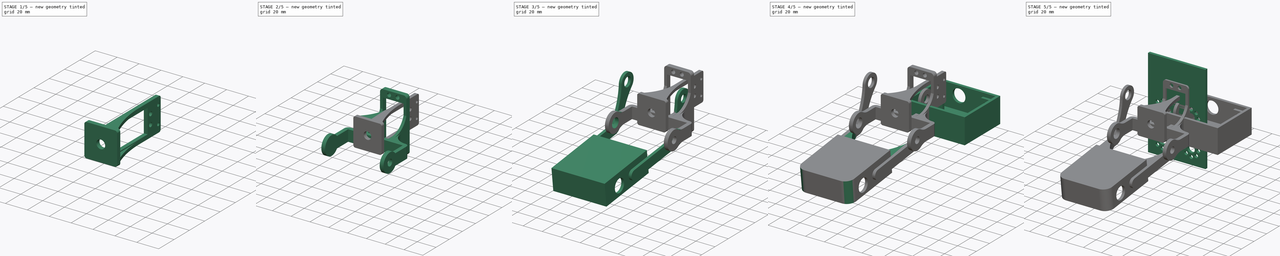
[diagram: build sequence overview — one tinted view per stage of 5, left to right]
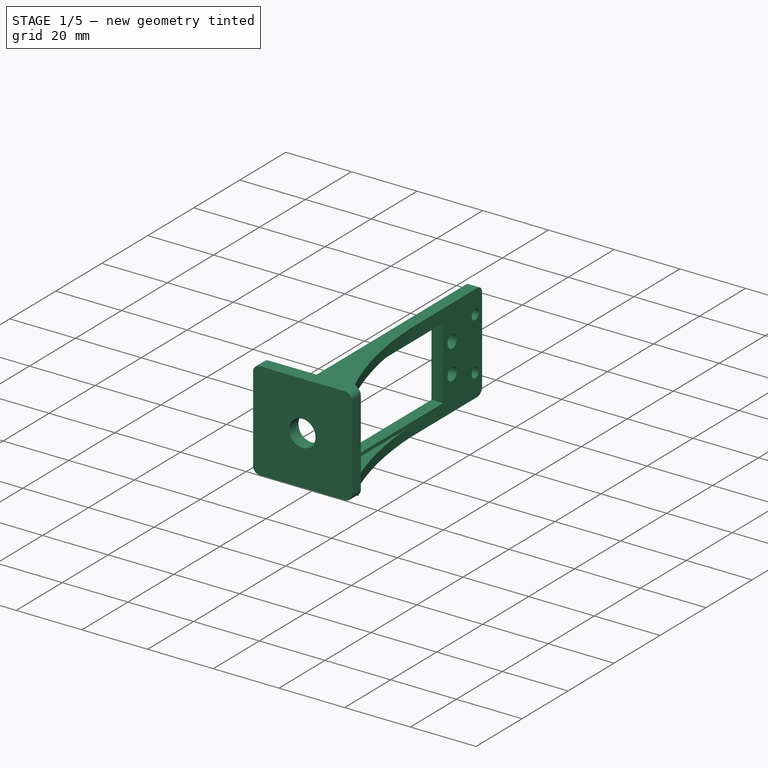
[diagram: stage 1 of 5 — iso view after this stage's code; geometry added in this stage tinted green]
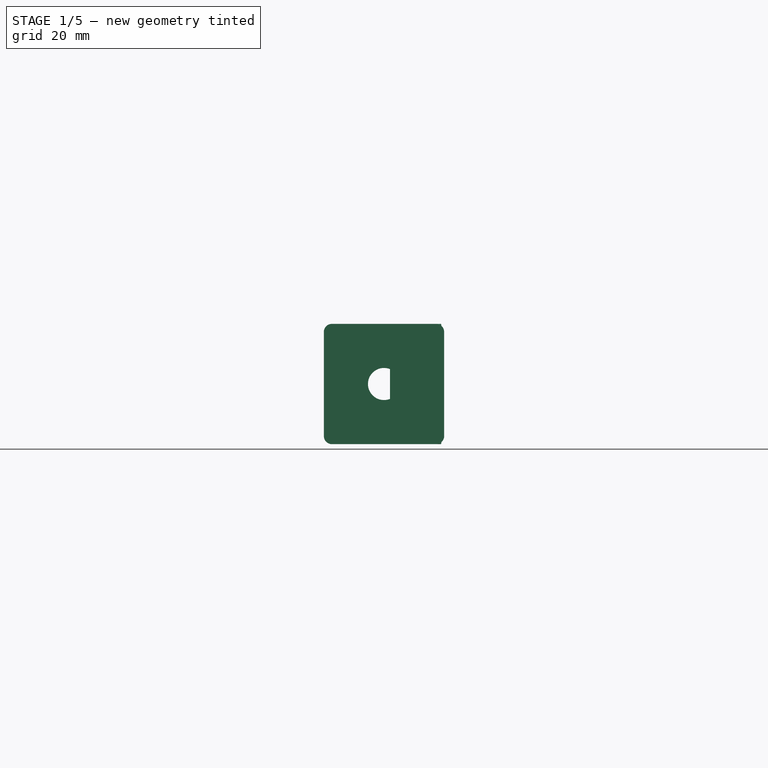
[diagram: stage 1 of 5 — front view after this stage's code; geometry added in this stage tinted green]
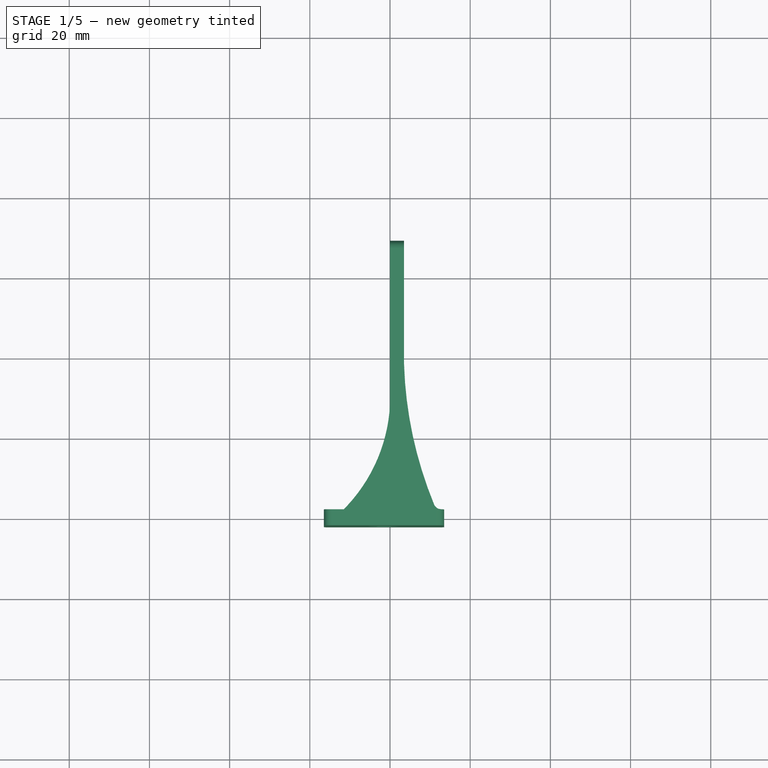
[diagram: stage 1 of 5 — top view after this stage's code; geometry added in this stage tinted green]
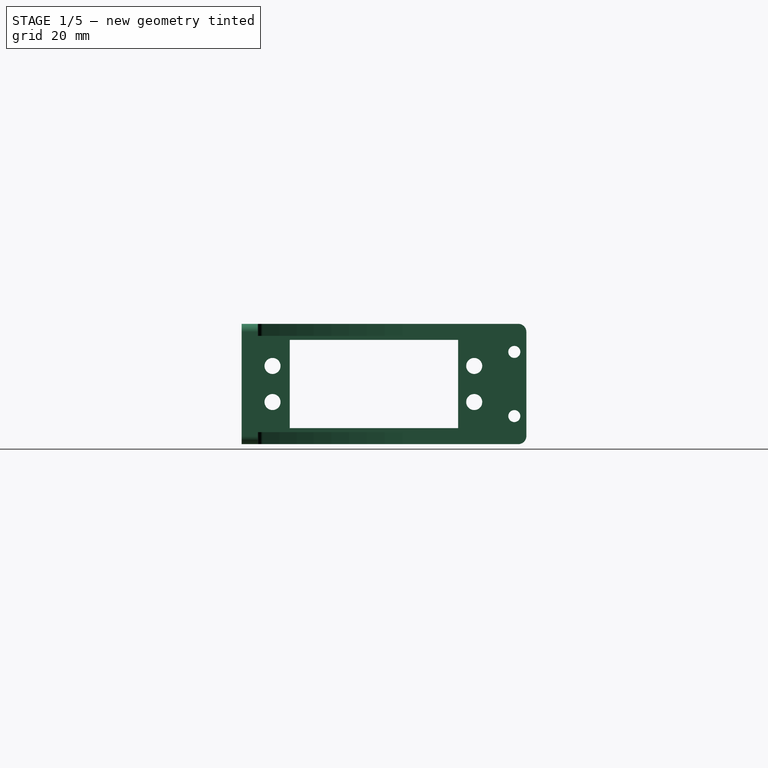
[diagram: stage 1 of 5 — right view after this stage's code; geometry added in this stage tinted green]
FCSTD DOCUMENT  (FreeCAD 0.18R4 (GitTag))
Label: Korob_1
License: All rights reserved
LicenseURL: http://en.wikipedia.org/wiki/All_rights_reserved
objects: Sketcher::SketchObject×36, PartDesign::Pad×22, PartDesign::Pocket×13, PartDesign::Body×7, PartDesign::Fillet×5, Part::Feature×4
note: 122 computed .brp shape members not serialized (recipe doc carries the construction recipe); baked Part::Feature solids carry a one-line shape summary decoded from their .brp

FEATURE [PartDesign::Body] Body005  label="Кулак"
  Group = -> [Sketch022,Pad010,Sketch023,Pad013,Sketch027,Pad011,Sketch024,Pad012,Sketch028,Pad014,Sketch029,Pocket011,Sketch026,Pad015,Sketch025,Pocket012,Fillet002]
  Origin = -> Origin005
  Placement = pos=(0,-65.5,-132) rot=(-1,0,0;1.5708rad)
  Tip = -> Fillet002
FEATURE [Part::Feature] Part__Feature004  label="Servo MG996R №005"
  Placement = pos=(-10,-86,-106) rot=(-0.57735,-0.57735,0.57735;2.0944rad)
  shape: bbox 21.65 x 53.6 x 47.6 mm, 253 faces (baked)
FEATURE [Sketcher::SketchObject] Sketch030
  MapMode = 5
  Placement = pos=(-1.7e-14,-38,2.5e-14) rot=(0.57735,0.57735,-0.57735;2.0944rad)
  sketch-geometry (9):
    g0: LineSegment StartX=-14 StartY=13.5 StartZ=0 EndX=12 EndY=13.5 EndZ=0
    g1: LineSegment StartX=14 StartY=11.5 StartZ=0 EndX=14 EndY=-14.5 EndZ=0
    g2: LineSegment StartX=12 StartY=-16.5 StartZ=0 EndX=-14 EndY=-16.5 EndZ=0
    g3: LineSegment StartX=-16 StartY=-14.5 StartZ=0 EndX=-16 EndY=11.5 EndZ=0
    g4: ArcOfCircle CenterX=-14 CenterY=11.5 CenterZ=0 NormalX=0 NormalY=0 NormalZ=1 AngleXU=0 Radius=2 StartAngle=1.5708 EndAngle=3.14159
    g5: ArcOfCircle CenterX=12 CenterY=11.5 CenterZ=0 NormalX=0 NormalY=0 NormalZ=1 AngleXU=0 Radius=2 StartAngle=3e-16 EndAngle=1.5708
    g6: ArcOfCircle CenterX=12 CenterY=-14.5 CenterZ=0 NormalX=0 NormalY=0 NormalZ=1 AngleXU=0 Radius=2 StartAngle=4.71239 EndAngle=6.28319
    g7: ArcOfCircle CenterX=-14 CenterY=-14.5 CenterZ=0 NormalX=0 NormalY=0 NormalZ=1 AngleXU=0 Radius=2 StartAngle=3.14159 EndAngle=4.71239
    g8: Circle CenterX=-1 CenterY=-1.5 CenterZ=0 NormalX=0 NormalY=0 NormalZ=1 AngleXU=0 Radius=4
  constraints (22):
    c: Horizontal(g0)
    c: Horizontal(g2)
    c: Vertical(g1)
    c: Vertical(g3)
    c: Tangent(g3,g4) = 1.5708
    c: Tangent(g0,g4) = 1.5708
    c: Tangent(g0,g5) = 1.5708
    c: Tangent(g1,g5) = 1.5708
    c: Tangent(g2,g6) = 1.5708
    c: Tangent(g1,g6) = 1.5708
    c: Tangent(g3,g7) = 1.5708
    c: Tangent(g2,g7) = 1.5708
    c: Radius(g7) = 2
    c: Radius(g6) = 2
    c: Radius(g5) = 2
    c: Radius(g4) = 2
    c: DistanceX(g0,g0) = 26
    c: DistanceY(g1,g1) = 26
    c: Radius(g8) = 4
    c: DistanceY(g8,g-1) = 1.5
    c: DistanceX(g8,g-1) = 1
    c: Symmetric(g4,g6,g8)
FEATURE [Sketcher::SketchObject] Sketch032
  MapMode = 5
  Placement = pos=(0,0,0) rot=(0.57735,0.57735,0.57735;2.0944rad)
  Support = -> [YZ_Plane006]
  sketch-geometry (14):
    g0: LineSegment StartX=-38 StartY=16 StartZ=0 EndX=27 EndY=16 EndZ=0
    g1: LineSegment StartX=29 StartY=14 StartZ=0 EndX=29 EndY=-12 EndZ=0
    g2: LineSegment StartX=27 StartY=-14 StartZ=0 EndX=-38 EndY=-14 EndZ=0
    g3: LineSegment StartX=-38 StartY=-14 StartZ=0 EndX=-38 EndY=16 EndZ=0
    g4: Circle CenterX=26 CenterY=9 CenterZ=0 NormalX=0 NormalY=0 NormalZ=1 AngleXU=0 Radius=1.5
    g5: Circle CenterX=26 CenterY=-7 CenterZ=0 NormalX=0 NormalY=0 NormalZ=1 AngleXU=0 Radius=1.5
    g6: GeomPoint X=0 Y=0 Z=0
    g7: Circle [constr] CenterX=0 CenterY=0 CenterZ=0 NormalX=0 NormalY=0 NormalZ=1 AngleXU=0 Radius=4
    g8: LineSegment StartX=-30 StartY=12 StartZ=0 EndX=12 EndY=12 EndZ=0
    g9: LineSegment StartX=12 StartY=12 StartZ=0 EndX=12 EndY=-10 EndZ=0
    g10: LineSegment StartX=12 StartY=-10 StartZ=0 EndX=-30 EndY=-10 EndZ=0
    g11: LineSegment StartX=-30 StartY=-10 StartZ=0 EndX=-30 EndY=12 EndZ=0
    g12: ArcOfCircle CenterX=27 CenterY=14 CenterZ=0 NormalX=0 NormalY=0 NormalZ=1 AngleXU=0 Radius=2 StartAngle=0 EndAngle=1.5708
    g13: ArcOfCircle CenterX=27 CenterY=-12 CenterZ=0 NormalX=0 NormalY=0 NormalZ=1 AngleXU=0 Radius=2 StartAngle=4.71239 EndAngle=6.28319
  constraints (37):
    c: Horizontal(g0)
    c: Horizontal(g2)
    c: Vertical(g1)
    c: Vertical(g3)
    c: Radius(g4) = 1.5
    c: Radius(g5) = 1.5
    c: DistanceY(g5,g4) = 16
    c: DistanceX(g6,g5) = 26
    c: DistanceY(g5,g6) = 7
    c: Coincident(g7,g6)
    c: Coincident(g8,g9)
    c: Coincident(g9,g10)
    c: Coincident(g10,g11)
    c: Coincident(g11,g8)
    c: Horizontal(g8)
    c: Horizontal(g10)
    c: Vertical(g9)
    c: Vertical(g11)
    c: DistanceX(g8,g8) = 42
    c: DistanceY(g9,g9) = 22
    c: Radius(g7) = 4
    c: Tangent(g0,g12) = 1.5708
    c: Tangent(g1,g12) = 1.5708
    c: Radius(g12) = 2
    c: Tangent(g2,g13) = 1.5708
    c: Tangent(g1,g13) = 1.5708
    c: Radius(g13) = 2
    c: DistanceX(g4,g5) = 0
    c: DistanceY(g2,g0) = 30
    c: DistanceX(g3,g1) = 67
    c: DistanceY(g2,g10) = 4
    c: DistanceX(g6,g9) = 12
    c: DistanceY(g9,g6) = 10
    c: DistanceX(g5,g1) = 3
    c: Coincident(g-1,g6)
    c: Coincident(g3,g2)
    c: Coincident(g3,g0)
FEATURE [PartDesign::Pad] Pad020
  Length = 3.5
  Length2 = 100
  Placement = pos=(0,0,0) rot=(0.57735,0.57735,0.57735;2.0944rad)
  Profile = -> Sketch032
  Type = 0
FEATURE [PartDesign::Pad] Pad018
  BaseFeature = -> Pad020
  Length = 4
  Length2 = 100
  Placement = pos=(0,0,0) rot=(0.57735,0.57735,0.57735;2.0944rad)
  Profile = -> Sketch030
  Type = 0
FEATURE [Sketcher::SketchObject] Sketch036
  ExternalGeometry = -> [Pad018]
  MapMode = 5
  Placement = pos=(-4.5e-15,7e-15,16) rot=(0,0,-1;1.5708rad)
  Support = -> [Pad018]
  sketch-geometry (3):
    g0: LineSegment StartX=-1.18158 StartY=3.45 StartZ=0 EndX=38 EndY=3.5 EndZ=0
    g1: LineSegment StartX=38 StartY=11.5 StartZ=0 EndX=38 EndY=3.5 EndZ=0
    g2: ArcOfCircle CenterX=-1.30919 CenterY=103.45 CenterZ=0 NormalX=0 NormalY=0 NormalZ=1 AngleXU=0 Radius=100 StartAngle=4.71367 EndAngle=5.11638
  constraints (7):
    c: Coincident(g1,g-4)
    c: Coincident(g2,g1)
    c: Tangent(g2,g0) = -1.5708
    c: Coincident(g1,g0)
    c: Radius(g2) = 100
    c: Coincident(g-3,g0)
    c: DistanceY(g-1,g0) = 3.45
FEATURE [PartDesign::Pad] Pad017
  BaseFeature = -> Pad018
  Length = 3
  Length2 = 100
  Placement = pos=(0,0,0) rot=(0.57735,0.57735,0.57735;2.0944rad)
  Profile = -> Sketch036
  Reversed = true
  Type = 0
FEATURE [Sketcher::SketchObject] Sketch035
  ExternalGeometry = -> [Pad017]
  MapMode = 5
  Placement = pos=(3.9e-15,-6.2e-15,-14) rot=(0.707107,0.707107,0;3.14159rad)
  Support = -> [Pad017]
  sketch-geometry (3):
    g0: LineSegment StartX=-38 StartY=11.5 StartZ=0 EndX=-38 EndY=3.5 EndZ=0
    g1: LineSegment StartX=-38 StartY=3.5 StartZ=0 EndX=1.18158 EndY=3.45 EndZ=0
    g2: ArcOfCircle CenterX=1.30919 CenterY=103.45 CenterZ=0 NormalX=0 NormalY=0 NormalZ=1 AngleXU=0 Radius=100 StartAngle=4.3084 EndAngle=4.71111
  constraints (7):
    c: Coincident(g1,g0)
    c: Coincident(g0,g-3)
    c: Coincident(g0,g-4)
    c: DistanceY(g-1,g1) = 3.45
    c: Coincident(g2,g0)
    c: Tangent(g2,g1) = -1.5708
    c: Radius(g2) = 100
FEATURE [PartDesign::Pad] Pad016
  BaseFeature = -> Pad017
  Length = 3
  Length2 = 100
  Placement = pos=(0,0,0) rot=(0.57735,0.57735,0.57735;2.0944rad)
  Profile = -> Sketch035
  Reversed = true
  Type = 0
FEATURE [Sketcher::SketchObject] Sketch033
  ExternalGeometry = -> [Pad016]
  MapMode = 5
  Placement = pos=(3.5,-8e-16,8e-16) rot=(0.57735,0.57735,0.57735;2.0944rad)
  Support = -> [Pad016]
  sketch-geometry (4):
    g0: Circle CenterX=-34.3 CenterY=5.5 CenterZ=0 NormalX=0 NormalY=0 NormalZ=1 AngleXU=0 Radius=2
    g1: Circle CenterX=-34.3 CenterY=-3.5 CenterZ=0 NormalX=0 NormalY=0 NormalZ=1 AngleXU=0 Radius=2
    g2: Circle CenterX=16 CenterY=5.5 CenterZ=0 NormalX=0 NormalY=0 NormalZ=1 AngleXU=0 Radius=2
    g3: Circle CenterX=16 CenterY=-3.5 CenterZ=0 NormalX=0 NormalY=0 NormalZ=1 AngleXU=0 Radius=2
  constraints (12):
    c: DistanceX(g-4,g3) = 4
    c: Radius(g3) = 2
    c: DistanceY(g-4,g3) = 6.5
    c: Radius(g2) = 2
    c: DistanceY(g2,g-3) = 6.5
    c: DistanceX(g-3,g2) = 4
    c: Radius(g0) = 2
    c: Radius(g1) = 2
    c: DistanceX(g1,g-4) = 4.3
    c: DistanceY(g-4,g1) = 6.5
    c: DistanceX(g0,g-3) = 4.3
    c: DistanceY(g0,g-3) = 6.5
FEATURE [Sketcher::SketchObject] Sketch034
  MapMode = 5
  Placement = pos=(0,0,0) rot=(0.57735,0.57735,-0.57735;4.18879rad)
  Support = -> [Pad016]
FEATURE [PartDesign::Pocket] Pocket013
  BaseFeature = -> Pad016
  Length = 4
  Length2 = 100
  Placement = pos=(0,0,0) rot=(0.57735,0.57735,0.57735;2.0944rad)
  Profile = -> Sketch033
  Type = 0
FEATURE [PartDesign::Fillet] Fillet003
  Base = -> Pocket013 [Edge89]
  BaseFeature = -> Pocket013
  Placement = pos=(0,0,0) rot=(0.57735,0.57735,0.57735;2.0944rad)
  Radius = 2
FEATURE [PartDesign::Fillet] Fillet004
  Base = -> Fillet003 [Edge4]
  BaseFeature = -> Fillet003
  Placement = pos=(0,0,0) rot=(0.57735,0.57735,0.57735;2.0944rad)
  Radius = 2
FEATURE [Sketcher::SketchObject] Sketch031
  ExternalGeometry = -> [Fillet004]
  MapMode = 5
  Placement = pos=(-3.1e-15,-9.4e-15,-14) rot=(0.707107,0.707107,0;3.14159rad)
  Support = -> [Fillet004]
  sketch-geometry (3):
    g0: LineSegment StartX=-9.45537 StartY=0.05 StartZ=0 EndX=-38 EndY=-7.1e-15 EndZ=0
    g1: LineSegment StartX=-38 StartY=-12 StartZ=0 EndX=-38 EndY=-7.1e-15 EndZ=0
    g2: ArcOfCircle CenterX=-9.3853 CenterY=-39.9499 CenterZ=0 NormalX=0 NormalY=0 NormalZ=1 AngleXU=0 Radius=40 StartAngle=1.57255 EndAngle=2.36795
  constraints (8):
    c: Coincident(g1,g0)
    c: Tangent(g2,g0) = -1.5708
    c: Radius(g2) = 40
    c: Coincident(g2,g1)
    c: Coincident(g0,g-3)
    c: Vertical(g1)
    c: DistanceY(g1,g1) = 12
    c: DistanceY(g-1,g0) = 0.05
FEATURE [PartDesign::Pad] Pad021
  BaseFeature = -> Fillet004
  Length = 3
  Length2 = 100
  Placement = pos=(0,0,0) rot=(0.57735,0.57735,0.57735;2.0944rad)
  Profile = -> Sketch031
  Reversed = true
  Type = 0
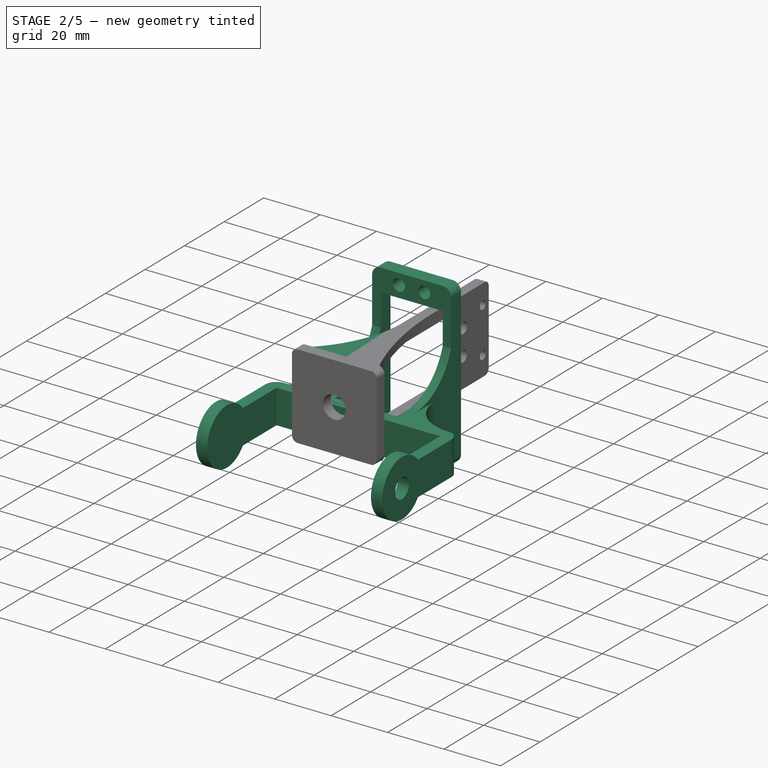
[diagram: stage 2 of 5 — iso view after this stage's code; geometry added in this stage tinted green]
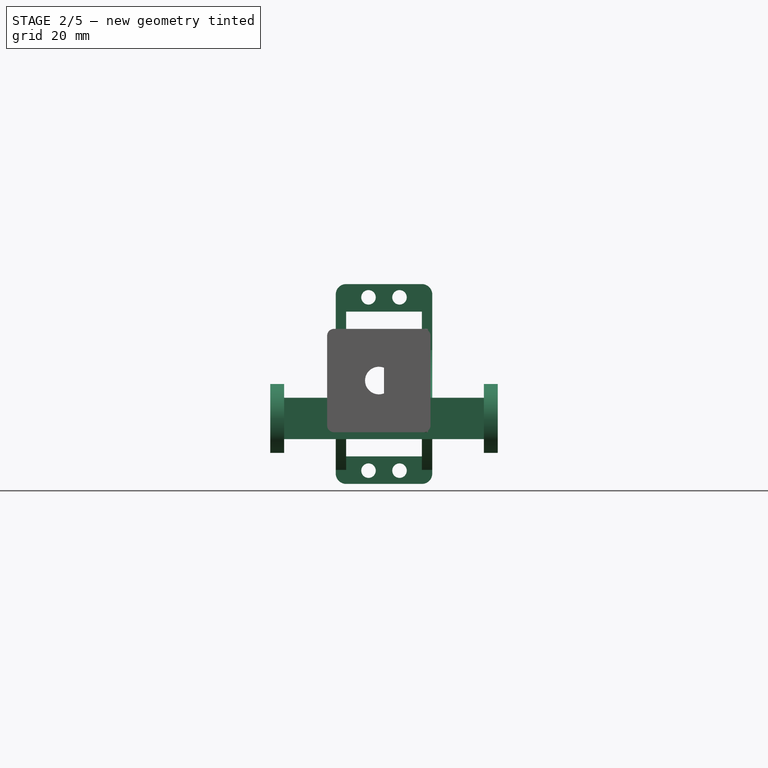
[diagram: stage 2 of 5 — front view after this stage's code; geometry added in this stage tinted green]
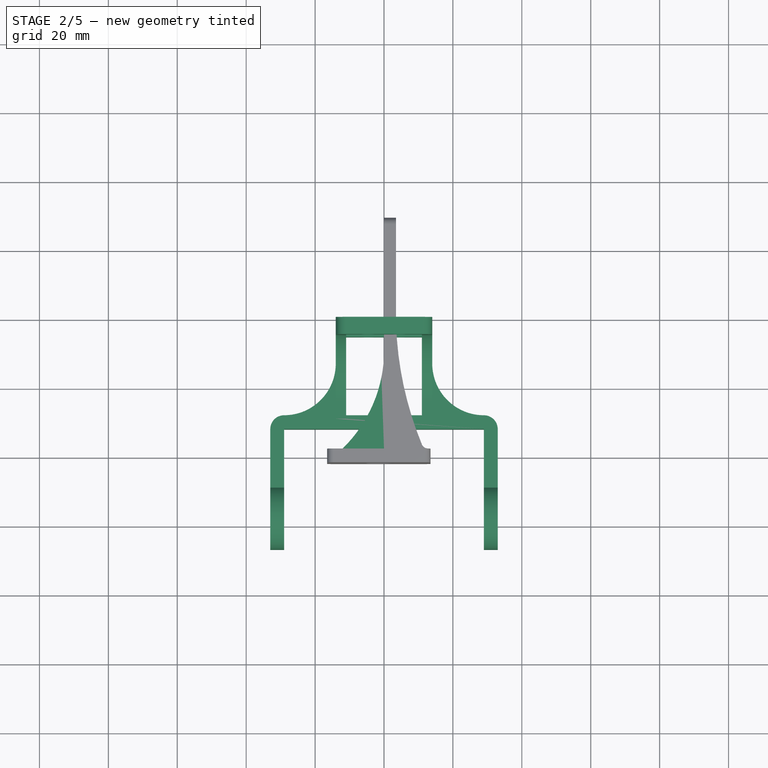
[diagram: stage 2 of 5 — top view after this stage's code; geometry added in this stage tinted green]
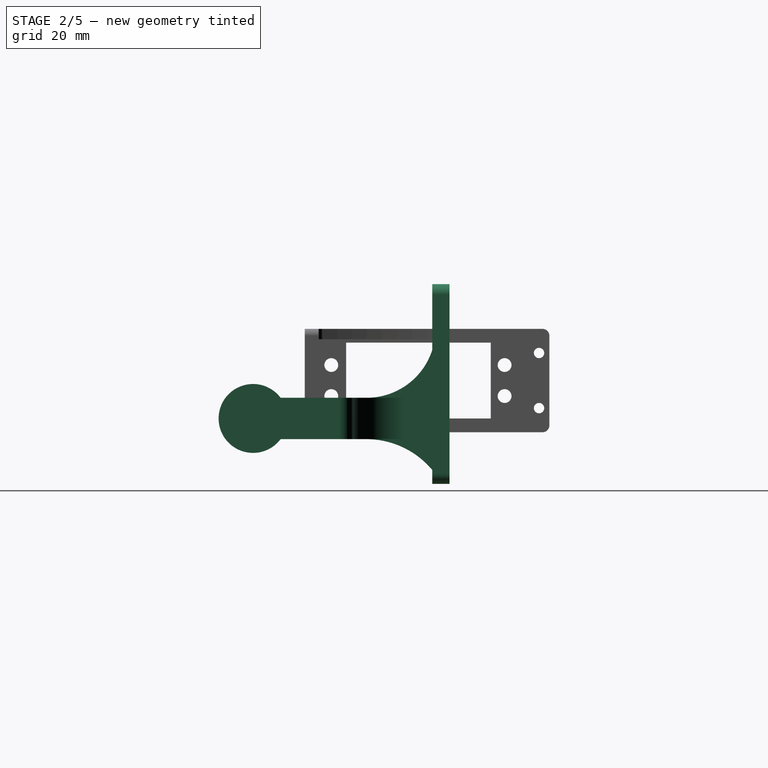
[diagram: stage 2 of 5 — right view after this stage's code; geometry added in this stage tinted green]
FEATURE [PartDesign::Body] Body004  label="Плечо"
  Group = -> [Sketch012,Pad005,Sketch013,Pad006,Sketch015,Pocket007,Sketch016,Pocket008,Sketch018,Pocket010,Sketch019,Pad007,Sketch020,Pad008,Sketch021,Pad009,Fillet,Fillet001]
  Origin = -> Origin004
  Placement = pos=(28,16.5,-26.5) rot=(0,0,1;0rad)
  Tip = -> Fillet001
FEATURE [Sketcher::SketchObject] Sketch022
  MapMode = 5
  Placement = pos=(0,0,0) rot=(1,0,0;1.5708rad)
  Support = -> [XZ_Plane005]
  sketch-geometry (20):
    g0: LineSegment StartX=-11 StartY=21 StartZ=0 EndX=11 EndY=21 EndZ=0
    g1: LineSegment StartX=11 StartY=21 StartZ=0 EndX=11 EndY=-21 EndZ=0
    g2: LineSegment StartX=11 StartY=-21 StartZ=0 EndX=-11 EndY=-21 EndZ=0
    g3: LineSegment StartX=-11 StartY=-21 StartZ=0 EndX=-11 EndY=21 EndZ=0
    g4: LineSegment StartX=-11 StartY=29 StartZ=0 EndX=11 EndY=29 EndZ=0
    g5: LineSegment StartX=14 StartY=26 StartZ=0 EndX=14 EndY=-26 EndZ=0
    g6: LineSegment StartX=11 StartY=-29 StartZ=0 EndX=-11 EndY=-29 EndZ=0
    g7: LineSegment StartX=-14 StartY=-26 StartZ=0 EndX=-14 EndY=26 EndZ=0
    g8: ArcOfCircle CenterX=-11 CenterY=26 CenterZ=0 NormalX=0 NormalY=0 NormalZ=1 AngleXU=0 Radius=3 StartAngle=1.5708 EndAngle=3.14159
    g9: ArcOfCircle CenterX=11 CenterY=26 CenterZ=0 NormalX=0 NormalY=0 NormalZ=1 AngleXU=0 Radius=3 StartAngle=4e-16 EndAngle=1.5708
    g10: ArcOfCircle CenterX=-11 CenterY=-26 CenterZ=0 NormalX=0 NormalY=0 NormalZ=1 AngleXU=0 Radius=3 StartAngle=3.14159 EndAngle=4.71239
    g11: ArcOfCircle CenterX=11 CenterY=-26 CenterZ=0 NormalX=0 NormalY=0 NormalZ=1 AngleXU=0 Radius=3 StartAngle=4.71239 EndAngle=6.28319
    g12: Circle CenterX=-4.5 CenterY=-25.15 CenterZ=0 NormalX=0 NormalY=0 NormalZ=1 AngleXU=0 Radius=2.1
    g13: Circle CenterX=4.5 CenterY=-25.15 CenterZ=0 NormalX=0 NormalY=0 NormalZ=1 AngleXU=0 Radius=2.1
    g14: Circle CenterX=-4.5 CenterY=25.15 CenterZ=0 NormalX=0 NormalY=0 NormalZ=1 AngleXU=0 Radius=2.1
    g15: Circle CenterX=4.5 CenterY=25.15 CenterZ=0 NormalX=0 NormalY=0 NormalZ=1 AngleXU=0 Radius=2.1
    g16: LineSegment [constr] StartX=-4.5 StartY=25.15 StartZ=0 EndX=4.5 EndY=25.15 EndZ=0
    g17: LineSegment [constr] StartX=4.5 StartY=25.15 StartZ=0 EndX=4.5 EndY=-25.15 EndZ=0
    g18: LineSegment [constr] StartX=4.5 StartY=-25.15 StartZ=0 EndX=-4.5 EndY=-25.15 EndZ=0
    g19: LineSegment [constr] StartX=-4.5 StartY=-25.15 StartZ=0 EndX=-4.5 EndY=25.15 EndZ=0
  constraints (49):
    c: Coincident(g0,g1)
    c: Coincident(g1,g2)
    c: Coincident(g2,g3)
    c: Coincident(g3,g0)
    c: Horizontal(g0)
    c: Horizontal(g2)
    c: Vertical(g1)
    c: Vertical(g3)
    c: DistanceY(g1,g1) = 42
    c: DistanceX(g0,g0) = 22
    c: Symmetric(g0,g1,g-1)
    c: Horizontal(g4)
    c: Horizontal(g6)
    c: Vertical(g5)
    c: Vertical(g7)
    c: Tangent(g7,g8) = 1.5708
    c: Tangent(g4,g8) = 1.5708
    c: Tangent(g4,g9) = 1.5708
    c: Tangent(g5,g9) = 1.5708
    c: Tangent(g7,g10) = 1.5708
    c: Tangent(g6,g10) = 1.5708
    c: Tangent(g5,g11) = 1.5708
    c: Tangent(g6,g11) = 1.5708
    c: Radius(g10) = 3
    c: Radius(g11) = 3
    c: Radius(g8) = 3
    c: Radius(g9) = 3
    c: DistanceX(g4,g4) = 22
    c: DistanceY(g5,g5) = 52
    c: Symmetric(g8,g11,g-1)
    c: Radius(g15) = 2.1
    c: Radius(g14) = 2.1
    c: Radius(g13) = 2.1
    c: Radius(g12) = 2.1
    c: Coincident(g16,g17)
    c: Coincident(g17,g18)
    c: Coincident(g18,g19)
    c: Coincident(g19,g16)
    c: Horizontal(g16)
    c: Horizontal(g18)
    c: Vertical(g17)
    c: Vertical(g19)
    c: Coincident(g16,g14)
    c: Coincident(g16,g15)
    c: Coincident(g18,g12)
    c: Coincident(g13,g17)
    c: DistanceX(g18,g18) = 9
    c: DistanceY(g17,g17) = 50.3
    c: Symmetric(g14,g13,g-1)
FEATURE [PartDesign::Pad] Pad010
  Length = 5
  Length2 = 100
  Placement = pos=(0,0,0) rot=(1,0,0;1.5708rad)
  Profile = -> Sketch022
  Type = 0
FEATURE [Sketcher::SketchObject] Sketch023
  MapMode = 5
  Placement = pos=(-14,0,0) rot=(0.707107,0,-0.707107;3.14159rad)
  Support = -> [Pad010]
  sketch-geometry (6):
    g0: LineSegment StartX=4 StartY=29.0288 StartZ=0 EndX=16 EndY=29.0288 EndZ=0
    g1: LineSegment StartX=16 StartY=29.0288 StartZ=0 EndX=16 EndY=24.1594 EndZ=0
    g2: LineSegment StartX=4 StartY=24.0288 StartZ=0 EndX=4 EndY=29.0288 EndZ=0
    g3: LineSegment StartX=-10 StartY=4.95 StartZ=0 EndX=25 EndY=4.95 EndZ=0
    g4: ArcOfCircle CenterX=41 CenterY=24.1594 CenterZ=0 NormalX=0 NormalY=0 NormalZ=1 AngleXU=0 Radius=25 StartAngle=3.14159 EndAngle=4.01789
    g5: ArcOfCircle CenterX=-16 CenterY=24.0288 CenterZ=0 NormalX=0 NormalY=0 NormalZ=1 AngleXU=0 Radius=20 StartAngle=5.01708 EndAngle=6.28319
  constraints (19):
    c: Coincident(g0,g1)
    c: Coincident(g2,g0)
    c: Horizontal(g0)
    c: Vertical(g1)
    c: Vertical(g2)
    c: Horizontal(g3)
    c: Distance(g3) = 35
    c: Coincident(g5,g3)
    c: Coincident(g3,g4)
    c: DistanceX(g0,g0) = 12
    c: Radius(g5) = 20
    c: Tangent(g1,g4) = -1.5708
    c: Tangent(g5,g2) = -1.5708
    c: DistanceX(g-1,g0) = 4
    c: DistanceY(g-1,g3) = 4.95
    c: Coincident(g4,g1)
    c: Radius(g4) = 25
    c: DistanceX(g3,g-1) = 10
    c: DistanceY(g2,g2) = 5
FEATURE [PartDesign::Pad] Pad013
  BaseFeature = -> Pad010
  Length = 3
  Length2 = 100
  Placement = pos=(0,0,0) rot=(1,0,0;1.5708rad)
  Profile = -> Sketch023
  Reversed = true
  Type = 0
FEATURE [Sketcher::SketchObject] Sketch027
  MapMode = 5
  Placement = pos=(14,0,0) rot=(0.707107,0,0.707107;3.14159rad)
  Support = -> [Pad013]
  sketch-geometry (6):
    g0: LineSegment StartX=10 StartY=4.95 StartZ=0 EndX=-25 EndY=4.95 EndZ=0
    g1: ArcOfCircle CenterX=-41 CenterY=24.1594 CenterZ=0 NormalX=0 NormalY=0 NormalZ=1 AngleXU=0 Radius=25 StartAngle=5.40689 EndAngle=6.28319
    g2: ArcOfCircle CenterX=16 CenterY=24.0288 CenterZ=0 NormalX=0 NormalY=0 NormalZ=1 AngleXU=0 Radius=20 StartAngle=3.14159 EndAngle=4.4077
    g3: LineSegment StartX=-16 StartY=29.0288 StartZ=0 EndX=-4 EndY=29.0288 EndZ=0
    g4: LineSegment StartX=-4 StartY=29.0288 StartZ=0 EndX=-4 EndY=24.0288 EndZ=0
    g5: LineSegment StartX=-16 StartY=24.1594 StartZ=0 EndX=-16 EndY=29.0288 EndZ=0
  constraints (18):
    c: DistanceX(g0,g0) = 35
    c: DistanceX(g-1,g0) = 10
    c: DistanceY(g-1,g0) = 4.95
    c: Parallel(g0,g-1)
    c: Coincident(g0,g1)
    c: Coincident(g0,g2)
    c: Radius(g2) = 20
    c: Radius(g1) = 25
    c: Coincident(g3,g4)
    c: Coincident(g5,g3)
    c: Horizontal(g3)
    c: Vertical(g4)
    c: Vertical(g5)
    c: DistanceX(g3,g3) = 12
    c: DistanceX(g3,g-1) = 4
    c: Tangent(g5,g1) = -1.5708
    c: Tangent(g4,g2) = -1.5708
    c: DistanceY(g4,g4) = 5
FEATURE [PartDesign::Pad] Pad011
  BaseFeature = -> Pad013
  Length = 3
  Length2 = 100
  Placement = pos=(0,0,0) rot=(1,0,0;1.5708rad)
  Profile = -> Sketch027
  Reversed = true
  Type = 0
FEATURE [Sketcher::SketchObject] Sketch024
  MapMode = 5
  Placement = pos=(9e-16,-1.8e-15,-4) rot=(0,0,1;3.14159rad)
  Support = -> [Pad011]
  sketch-geometry (14):
    g0: LineSegment StartX=-29 StartY=32 StartZ=0 EndX=29 EndY=32 EndZ=0
    g1: LineSegment StartX=33 StartY=32 StartZ=0 EndX=33 EndY=57 EndZ=0
    g2: LineSegment StartX=33 StartY=57 StartZ=0 EndX=29 EndY=57 EndZ=0
    g3: LineSegment StartX=29 StartY=57 StartZ=0 EndX=29 EndY=32 EndZ=0
    g4: LineSegment StartX=-33 StartY=57 StartZ=0 EndX=-29 EndY=57 EndZ=0
    g5: LineSegment StartX=-29 StartY=57 StartZ=0 EndX=-29 EndY=32 EndZ=0
    g6: LineSegment StartX=-33 StartY=32 StartZ=0 EndX=-33 EndY=57 EndZ=0
    g7: LineSegment StartX=-14 StartY=28 StartZ=0 EndX=-14 EndY=13 EndZ=0
    g8: LineSegment StartX=14 StartY=28 StartZ=0 EndX=14 EndY=13 EndZ=0
    g9: ArcOfCircle CenterX=-29 CenterY=13 CenterZ=0 NormalX=0 NormalY=0 NormalZ=1 AngleXU=0 Radius=15 StartAngle=2e-16 EndAngle=1.5708
    g10: ArcOfCircle CenterX=-29 CenterY=32 CenterZ=0 NormalX=0 NormalY=0 NormalZ=1 AngleXU=0 Radius=4 StartAngle=3.14159 EndAngle=4.71239
    g11: ArcOfCircle CenterX=29 CenterY=13 CenterZ=0 NormalX=0 NormalY=0 NormalZ=1 AngleXU=0 Radius=15 StartAngle=1.5708 EndAngle=3.14159
    g12: ArcOfCircle CenterX=29 CenterY=32 CenterZ=0 NormalX=0 NormalY=0 NormalZ=1 AngleXU=0 Radius=4 StartAngle=4.71239 EndAngle=6.28319
    g13: LineSegment StartX=-14 StartY=28 StartZ=0 EndX=14 EndY=28 EndZ=0
  constraints (38):
    c: Coincident(g1,g2)
    c: Coincident(g2,g3)
    c: Horizontal(g2)
    c: Vertical(g1)
    c: Vertical(g3)
    c: Coincident(g4,g5)
    c: Coincident(g6,g4)
    c: Horizontal(g4)
    c: Vertical(g5)
    c: Vertical(g6)
    c: Coincident(g5,g0)
    c: Coincident(g3,g0)
    c: DistanceY(g5,g5) = 25
    c: DistanceY(g3,g3) = 25
    c: DistanceX(g0,g0) = 58
    c: Symmetric(g0,g0,g-2)
    c: DistanceX(g4,g4) = 4
    c: DistanceX(g2,g2) = 4
    c: Vertical(g7)
    c: Vertical(g8)
    c: Tangent(g9,g7) = 1.5708
    c: Coincident(g10,g0)
    c: PointOnObject(g6,g0)
    c: Coincident(g6,g10)
    c: Tangent(g10,g9) = 1.5708
    c: Tangent(g8,g11) = -1.5708
    c: PointOnObject(g1,g0)
    c: Coincident(g12,g0)
    c: Coincident(g1,g12)
    c: Tangent(g12,g11) = 1.5708
    c: Coincident(g13,g8)
    c: Coincident(g13,g7)
    c: DistanceY(g7,g0) = 4
    c: DistanceX(g13,g13) = 28
    c: Symmetric(g7,g8,g-2)
    c: Radius(g9) = 15
    c: Radius(g11) = 15
    c: DistanceY(g-1,g7) = 28
FEATURE [PartDesign::Pad] Pad012
  BaseFeature = -> Pad011
  Length = 12
  Length2 = 100
  Placement = pos=(0,0,0) rot=(1,0,0;1.5708rad)
  Profile = -> Sketch024
  Reversed = true
  Type = 0
FEATURE [Sketcher::SketchObject] Sketch028
  MapMode = 5
  Placement = pos=(33,0,7.3e-15) rot=(0.707107,0,0.707107;3.14159rad)
  Support = -> [Pad012]
  sketch-geometry (1):
    g0: Circle CenterX=-10 CenterY=57 CenterZ=0 NormalX=0 NormalY=0 NormalZ=1 AngleXU=0 Radius=10
  constraints (3):
    c: DistanceX(g0,g-1) = 10
    c: DistanceY(g-1,g0) = 57
    c: Radius(g0) = 10
FEATURE [PartDesign::Pad] Pad014
  BaseFeature = -> Pad012
  Length = 4
  Length2 = 100
  Placement = pos=(0,0,0) rot=(1,0,0;1.5708rad)
  Profile = -> Sketch028
  Reversed = true
  Type = 0
FEATURE [Sketcher::SketchObject] Sketch029
  ExternalGeometry = -> [Pad014]
  MapMode = 5
  Placement = pos=(33,0,0) rot=(0.707107,0,0.707107;3.14159rad)
  Support = -> [Pad014]
  sketch-geometry (1):
    g0: Circle CenterX=-10 CenterY=57 CenterZ=0 NormalX=0 NormalY=0 NormalZ=1 AngleXU=0 Radius=3.5
  constraints (2):
    c: Coincident(g0,g-3)
    c: Radius(g0) = 3.5
FEATURE [PartDesign::Pocket] Pocket011
  BaseFeature = -> Pad014
  Length = 4
  Length2 = 100
  Placement = pos=(0,0,0) rot=(1,0,0;1.5708rad)
  Profile = -> Sketch029
  Type = 0
FEATURE [Sketcher::SketchObject] Sketch026
  MapMode = 5
  Placement = pos=(-33,0,-7.3e-15) rot=(0.707107,0,-0.707107;3.14159rad)
  Support = -> [Pocket011]
  sketch-geometry (1):
    g0: Circle CenterX=10 CenterY=57 CenterZ=0 NormalX=0 NormalY=0 NormalZ=1 AngleXU=0 Radius=10
  constraints (3):
    c: DistanceX(g-1,g0) = 10
    c: DistanceY(g-1,g0) = 57
    c: Radius(g0) = 10
FEATURE [PartDesign::Pad] Pad015
  BaseFeature = -> Pocket011
  Length = 4
  Length2 = 100
  Placement = pos=(0,0,0) rot=(1,0,0;1.5708rad)
  Profile = -> Sketch026
  Reversed = true
  Type = 0
FEATURE [Sketcher::SketchObject] Sketch037
  ExternalGeometry = -> [Pad021]
  MapMode = 5
  Placement = pos=(3.5e-15,1.07e-14,16) rot=(0,0,-1;1.5708rad)
  Support = -> [Pad021]
  sketch-geometry (3):
    g0: LineSegment StartX=9.45537 StartY=0.05 StartZ=0 EndX=38 EndY=-2.66e-14 EndZ=0
    g1: LineSegment StartX=38 StartY=-2.66e-14 StartZ=0 EndX=38 EndY=-12 EndZ=0
    g2: ArcOfCircle CenterX=9.3853 CenterY=-39.9499 CenterZ=0 NormalX=0 NormalY=0 NormalZ=1 AngleXU=0 Radius=40 StartAngle=0.773647 EndAngle=1.56904
  constraints (8):
    c: Coincident(g0,g1)
    c: Vertical(g1)
    c: DistanceY(g1,g1) = 12
    c: Coincident(g2,g1)
    c: Tangent(g2,g0) = 1.5708
    c: Radius(g2) = 40
    c: Coincident(g0,g-3)
    c: DistanceY(g-1,g0) = 0.05
FEATURE [PartDesign::Pad] Pad019
  BaseFeature = -> Pad021
  Length = 3
  Length2 = 100
  Placement = pos=(0,0,0) rot=(0.57735,0.57735,0.57735;2.0944rad)
  Profile = -> Sketch037
  Reversed = true
  Type = 0
FEATURE [PartDesign::Body] Body006  label="Клешня"
  Group = -> [Sketch032,Pad020,Sketch030,Pad018,Sketch036,Pad017,Sketch035,Pad016,Sketch034,Sketch033,Pocket013,Fillet003,Fillet004,Sketch031,Pad021,Sketch037,Pad019]
  Origin = -> Origin006
  Placement = pos=(0.5,-75.5,-192) rot=(0.57735,0.57735,-0.57735;4.18879rad)
  Tip = -> Pad019
FEATURE [Part::Feature] Part__Feature005  label="Servo MG996R №006"
  Placement = pos=(9.5,-42,-203) rot=(0.707107,0,0.707107;3.14159rad)
  shape: bbox 21.65 x 47.6 x 53.6 mm, 253 faces (baked)
FEATURE [Part::Feature] Part__Feature006  label="Servo MG996R №007"
  Placement = pos=(-16,26.5,-36.5) rot=(0.57735,0.57735,0.57735;4.18879rad)
  shape: bbox 47.6 x 21.65 x 53.6 mm, 253 faces (baked)
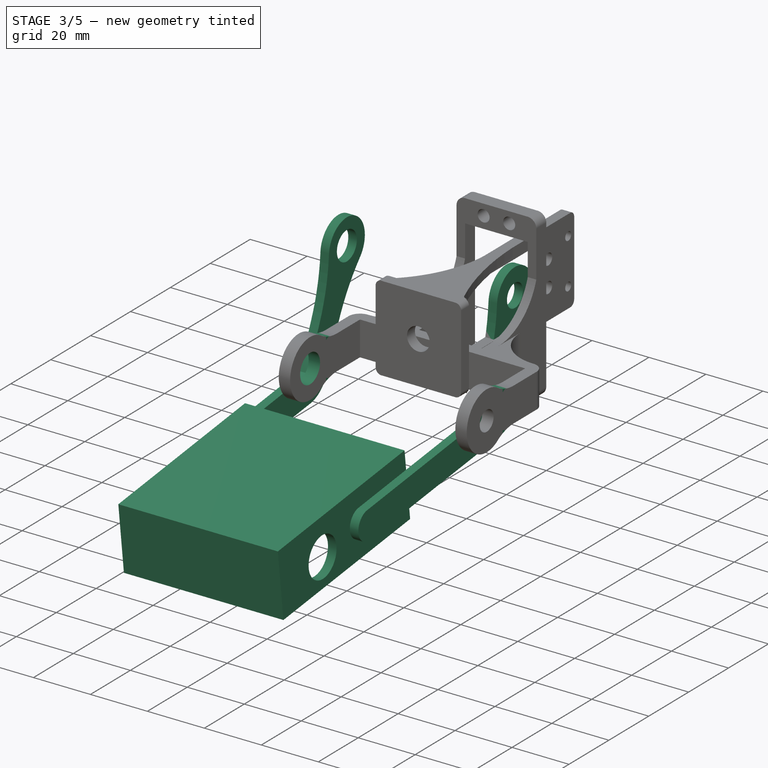
[diagram: stage 3 of 5 — iso view after this stage's code; geometry added in this stage tinted green]
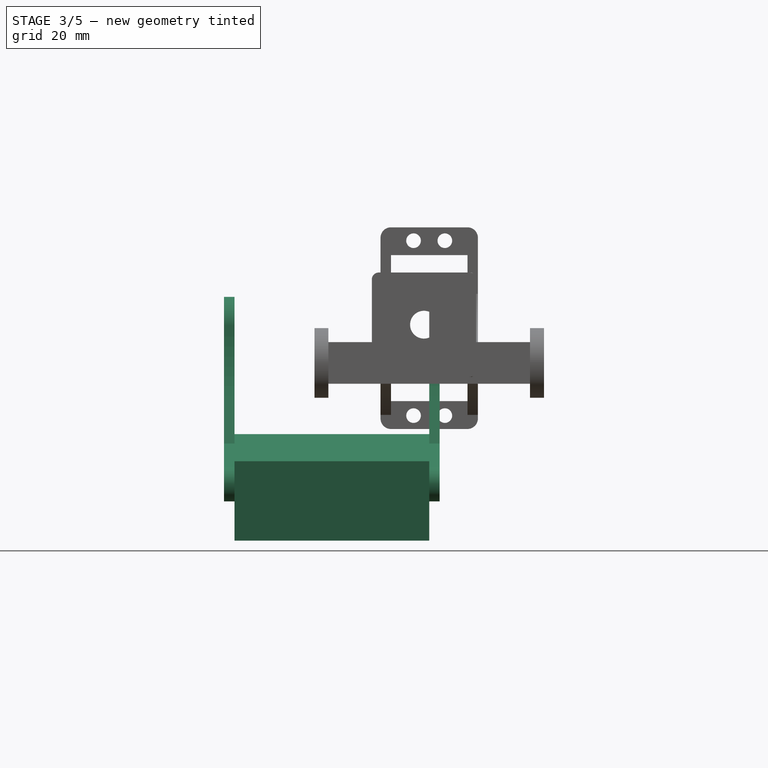
[diagram: stage 3 of 5 — front view after this stage's code; geometry added in this stage tinted green]
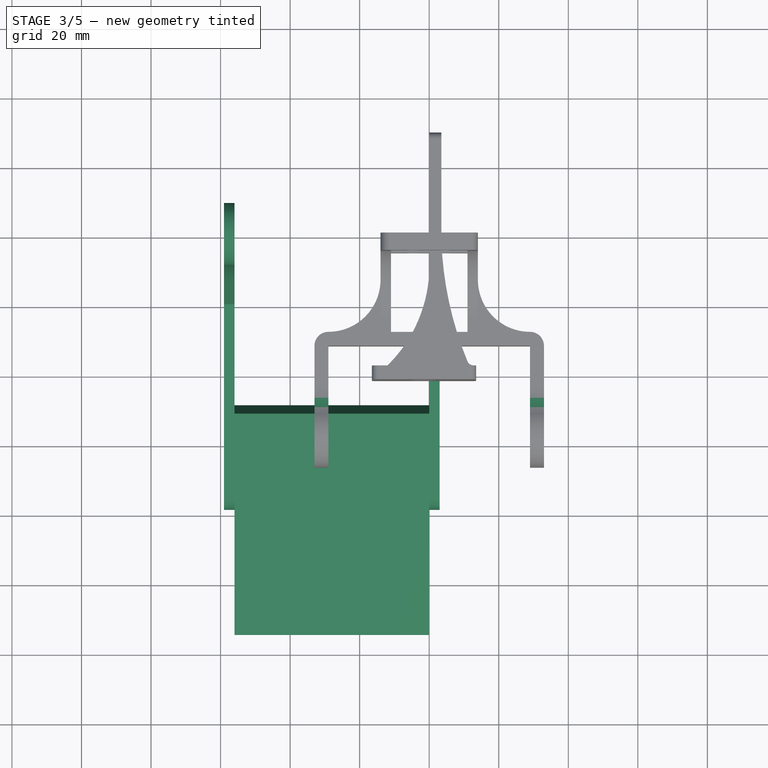
[diagram: stage 3 of 5 — top view after this stage's code; geometry added in this stage tinted green]
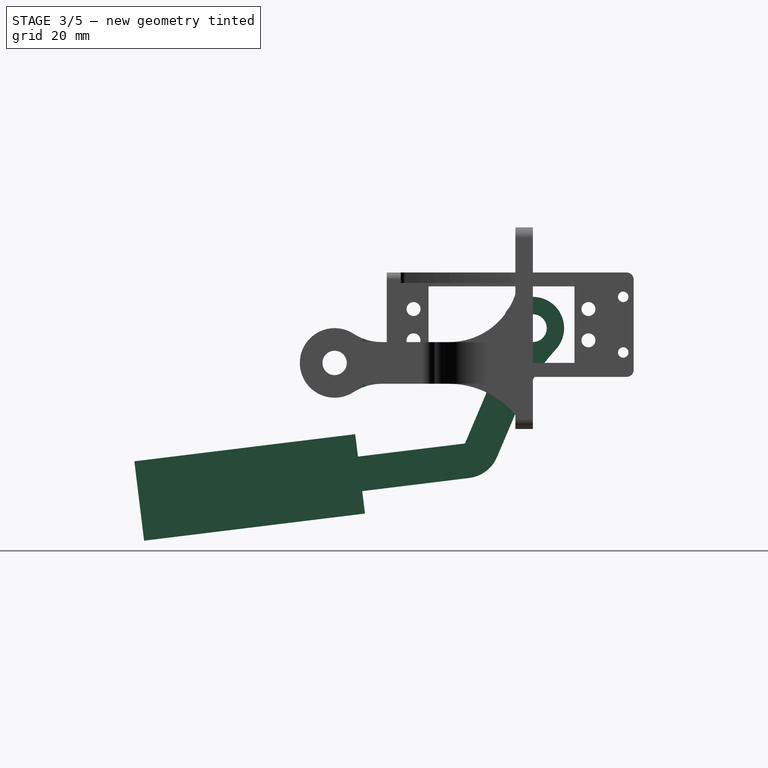
[diagram: stage 3 of 5 — right view after this stage's code; geometry added in this stage tinted green]
FEATURE [PartDesign::Body] Body  label=" Короб №1"
  Group = -> [Sketch,Pad,Sketch001,Pocket,Sketch002,Pocket001,Sketch003,Pocket002,Sketch004,Pad001,Sketch011,Pocket006]
  Origin = -> Origin
  Placement = pos=(-15,27,-36.5) rot=(0.57735,0.57735,0.57735;4.18879rad)
  Tip = -> Pocket006
FEATURE [Sketcher::SketchObject] Sketch012
  MapMode = 5
  Placement = pos=(0,0,0) rot=(0.57735,0.57735,0.57735;2.0944rad)
  Support = -> [YZ_Plane004]
  sketch-geometry (14):
    g0: LineSegment StartX=-13.6486 StartY=-19.3576 StartZ=0 EndX=-19.5096 EndY=-33.1651 EndZ=0
    g1: LineSegment [constr] StartX=-19.5096 StartY=-33.1651 StartZ=0 EndX=-10.3045 EndY=-37.0725 EndZ=0
    g2: LineSegment StartX=-10.3045 StartY=-37.0725 StartZ=0 EndX=-4.44356 EndY=-23.2649 EndZ=0
    g3: ArcOfCircle CenterX=0 CenterY=0 CenterZ=0 NormalX=0 NormalY=0 NormalZ=1 AngleXU=0 Radius=9 StartAngle=5.53959 EndAngle=9.36552
    g4: Circle CenterX=0 CenterY=0 CenterZ=0 NormalX=0 NormalY=0 NormalZ=1 AngleXU=0 Radius=4
    g5: ArcOfCircle CenterX=50.7867 CenterY=-46.7088 CenterZ=0 NormalX=0 NormalY=0 NormalZ=1 AngleXU=0 Radius=60 StartAngle=2.398 EndAngle=2.74017
    g6: ArcOfCircle CenterX=-68.8789 CenterY=4.0863 CenterZ=0 NormalX=0 NormalY=0 NormalZ=1 AngleXU=0 Radius=60 StartAngle=5.88176 EndAngle=6.22393
    g7: LineSegment [constr] StartX=-4.44356 StartY=-23.2649 StartZ=0 EndX=-13.6486 EndY=-19.3576 EndZ=0
    g8: LineSegment StartX=-19.5096 StartY=-33.1651 StartZ=0 EndX=-74.0996 EndY=-39.868 EndZ=0
    g9: LineSegment StartX=-72.8809 StartY=-49.7934 StartZ=0 EndX=-18.2909 EndY=-43.0906 EndZ=0
    g10: LineSegment [constr] StartX=-18.2909 StartY=-43.0906 StartZ=0 EndX=-19.5096 EndY=-33.1651 EndZ=0
    g11: ArcOfCircle CenterX=-19.5096 CenterY=-33.1651 CenterZ=0 NormalX=0 NormalY=0 NormalZ=1 AngleXU=0 Radius=10 StartAngle=4.83456 EndAngle=5.88176
    g12: ArcOfCircle CenterX=-73.4903 CenterY=-44.8307 CenterZ=0 NormalX=0 NormalY=0 NormalZ=1 AngleXU=0 Radius=5 StartAngle=1.69297 EndAngle=4.83456
    g13: LineSegment [constr] StartX=-74.0996 StartY=-39.868 StartZ=0 EndX=-72.8809 EndY=-49.7934 EndZ=0
  constraints (35):
    c: Coincident(g0,g1)
    c: Coincident(g1,g2)
    c: Radius(g3) = 9
    c: Distance(g1,g0) = 10
    c: Perpendicular(g1,g2)
    c: Perpendicular(g1,g0)
    c: Coincident(g4,g3)
    c: Radius(g4) = 4
    c: Tangent(g3,g5) = 1.5708
    c: Tangent(g2,g5) = 1.5708
    c: Tangent(g3,g6) = 1.5708
    c: Tangent(g0,g6) = 1.5708
    c: Radius(g6) = 60
    c: Radius(g5) = 60
    c: Coincident(g7,g2)
    c: Coincident(g7,g0)
    c: Parallel(g7,g1)
    c: Coincident(g9,g10)
    c: Coincident(g10,g8)
    c: Equal(g8,g9)
    c: Perpendicular(g9,g10)
    c: Coincident(g8,g0)
    c: Angle(g0,g8) = 2.0944
    c: Distance(g2,g1) = 15
    c: Coincident(g11,g0)
    c: Coincident(g11,g1)
    c: Coincident(g11,g9)
    c: Angle(g0,g-2) = 0.401426
    c: Radius(g12) = 5
    c: Coincident(g13,g9)
    c: Coincident(g12,g9)
    c: Tangent(g8,g12) = -1.5708
    c: Coincident(g13,g8)
    c: Distance(g9,g9) = 55
    c: Coincident(g-1,g3)
FEATURE [PartDesign::Pad] Pad005
  Length = 3
  Length2 = 100
  Placement = pos=(0,0,0) rot=(0.57735,0.57735,0.57735;2.0944rad)
  Profile = -> Sketch012
  Type = 0
FEATURE [Sketcher::SketchObject] Sketch013
  ExternalGeometry = -> [Pad005]
  MapMode = 5
  Placement = pos=(0,0,0) rot=(0.57735,0.57735,-0.57735;4.18879rad)
  Support = -> [Pad005]
  sketch-geometry (4):
    g0: LineSegment StartX=-111.791 StartY=61.1197 StartZ=0 EndX=-48.2677 EndY=53.3201 EndZ=0
    g1: LineSegment StartX=-48.2677 StartY=53.3201 StartZ=0 EndX=-51.0707 EndY=30.4915 EndZ=0
    g2: LineSegment StartX=-51.0707 StartY=30.4915 StartZ=0 EndX=-114.594 EndY=38.2912 EndZ=0
    g3: LineSegment StartX=-114.594 StartY=38.2912 StartZ=0 EndX=-111.791 EndY=61.1197 EndZ=0
  constraints (12):
    c: Coincident(g0,g1)
    c: Coincident(g1,g2)
    c: Coincident(g2,g3)
    c: Coincident(g3,g0)
    c: Perpendicular(g1,g0)
    c: Distance(g1) = 23
    c: Equal(g1,g3)
    c: Equal(g0,g2)
    c: Distance(g2) = 64
    c: Parallel(g2,g-4)
    c: Distance(g1,g-4) = 6.5
    c: Distance(g-4,g3) = 40
FEATURE [Part::Feature] Part__Feature003  label="Servo MG996R №4"
  Placement = pos=(-15,-84.1845,-86.3007) rot=(0.706446,0.706446,0.043208;3.22796rad)
  shape: bbox 47.6 x 55.5 x 26.25 mm, 253 faces (baked)
FEATURE [PartDesign::Pad] Pad006
  BaseFeature = -> Pad005
  Length = 56
  Length2 = 100
  Placement = pos=(0,0,0) rot=(0.57735,0.57735,0.57735;2.0944rad)
  Profile = -> Sketch013
  Type = 0
FEATURE [Sketcher::SketchObject] Sketch015
  ExternalGeometry = -> [Pad006]
  MapMode = 5
  Placement = pos=(2.45e-14,5.73277,-46.6897) rot=(0.706446,0.706446,0.043208;3.22796rad)
  Support = -> [Pad006]
  sketch-geometry (12):
    g0: LineSegment StartX=-115.406 StartY=-3 StartZ=0 EndX=-57.406 EndY=-3 EndZ=0
    g1: LineSegment StartX=-57.406 StartY=-3 StartZ=0 EndX=-57.406 EndY=-10 EndZ=0
    g2: LineSegment StartX=-57.406 StartY=-53 StartZ=0 EndX=-115.406 EndY=-53 EndZ=0
    g3: LineSegment StartX=-115.406 StartY=-53 StartZ=0 EndX=-115.406 EndY=-13 EndZ=0
    g4: LineSegment StartX=-115.406 StartY=-10 StartZ=0 EndX=-107.606 EndY=-10 EndZ=0
    g5: LineSegment StartX=-107.606 StartY=-10 StartZ=0 EndX=-107.606 EndY=-13 EndZ=0
    g6: LineSegment StartX=-107.606 StartY=-13 StartZ=0 EndX=-115.406 EndY=-13 EndZ=0
    g7: LineSegment StartX=-66.406 StartY=-10 StartZ=0 EndX=-57.406 EndY=-10 EndZ=0
    g8: LineSegment StartX=-57.406 StartY=-13 StartZ=0 EndX=-66.406 EndY=-13 EndZ=0
    g9: LineSegment StartX=-66.406 StartY=-13 StartZ=0 EndX=-66.406 EndY=-10 EndZ=0
    g10: LineSegment StartX=-57.406 StartY=-13 StartZ=0 EndX=-57.406 EndY=-53 EndZ=0
    g11: LineSegment StartX=-115.406 StartY=-10 StartZ=0 EndX=-115.406 EndY=-3 EndZ=0
  constraints (34):
    c: Coincident(g10,g2)
    c: Coincident(g2,g3)
    c: Coincident(g11,g0)
    c: Horizontal(g0)
    c: Horizontal(g2)
    c: Vertical(g1)
    c: Vertical(g3)
    c: DistanceX(g-3,g0) = 3
    c: DistanceY(g0,g-3) = 3
    c: DistanceX(g10,g-4) = 3
    c: DistanceY(g-4,g10) = 3
    c: Coincident(g0,g1)
    c: Coincident(g4,g5)
    c: Coincident(g5,g6)
    c: Horizontal(g4)
    c: Horizontal(g6)
    c: Vertical(g5)
    c: Coincident(g8,g9)
    c: Coincident(g9,g7)
    c: Horizontal(g7)
    c: Horizontal(g8)
    c: Vertical(g9)
    c: Coincident(g1,g7)
    c: Tangent(g1,g10)
    c: Coincident(g8,g10)
    c: DistanceY(g9,g9) = 3
    c: DistanceX(g7,g7) = 9
    c: DistanceY(g5,g5) = 3
    c: Coincident(g11,g4)
    c: Tangent(g3,g11)
    c: Coincident(g3,g6)
    c: DistanceX(g4,g4) = 7.8
    c: DistanceY(g3,g0) = 10
    c: DistanceY(g8,g0) = 10
FEATURE [PartDesign::Pocket] Pocket007
  BaseFeature = -> Pad006
  Length = 20
  Length2 = 100
  Placement = pos=(0,0,0) rot=(0.57735,0.57735,0.57735;2.0944rad)
  Profile = -> Sketch015
  Type = 0
FEATURE [Sketcher::SketchObject] Sketch016
  ExternalGeometry = -> [Pocket007]
  MapMode = 5
  Placement = pos=(1.27e-14,0,0) rot=(0.57735,0.57735,0.57735;2.0944rad)
  Support = -> [Pocket007]
  sketch-geometry (1):
    g0: Circle CenterX=-92.1658 CenterY=-48.635 CenterZ=0 NormalX=0 NormalY=0 NormalZ=1 AngleXU=0 Radius=7
  constraints (3):
    c: Distance(g0,g-4) = 21
    c: Distance(g0,g-3) = 10
    c: Radius(g0) = 7
FEATURE [PartDesign::Pocket] Pocket008
  BaseFeature = -> Pocket007
  Length = 3
  Length2 = 100
  Placement = pos=(0,0,0) rot=(0.57735,0.57735,0.57735;2.0944rad)
  Profile = -> Sketch016
  Type = 0
FEATURE [Sketcher::SketchObject] Sketch018
  ExternalGeometry = -> [Pocket008]
  MapMode = 5
  Placement = pos=(-13,7e-15,-1.5e-14) rot=(0.57735,0.57735,-0.57735;4.18879rad)
  sketch-geometry (4):
    g0: Circle CenterX=-57.4789 CenterY=39.8422 CenterZ=0 NormalX=0 NormalY=0 NormalZ=1 AngleXU=0 Radius=2.1
    g1: Circle CenterX=-56.382 CenterY=48.7751 CenterZ=0 NormalX=0 NormalY=0 NormalZ=1 AngleXU=0 Radius=2.1
    g2: Circle CenterX=-107.404 CenterY=45.9722 CenterZ=0 NormalX=0 NormalY=0 NormalZ=1 AngleXU=0 Radius=2.1
    g3: Circle CenterX=-106.307 CenterY=54.9052 CenterZ=0 NormalX=0 NormalY=0 NormalZ=1 AngleXU=0 Radius=2.1
  constraints (12):
    c: Radius(g3) = 2.1
    c: Radius(g2) = 2.1
    c: Radius(g0) = 2.1
    c: Radius(g1) = 2.1
    c: Distance(g0,g2) = 50.3
    c: Distance(g3,g1) = 50.3
    c: Distance(g1,g-5) = 5.5
    c: Distance(g0,g-5) = 14.5
    c: Distance(g3,g-5) = 5.5
    c: Distance(g2,g-5) = 14.5
    c: Distance(g1,g-3) = 4.5
    c: Distance(g0,g-3) = 4.5
FEATURE [PartDesign::Pocket] Pocket010
  BaseFeature = -> Pocket008
  Length = 3
  Length2 = 100
  Placement = pos=(0,0,0) rot=(0.57735,0.57735,0.57735;2.0944rad)
  Profile = -> Sketch018
  Type = 0
FEATURE [Sketcher::SketchObject] Sketch019
  MapMode = 5
  Placement = pos=(-56,7.5e-14,-5e-14) rot=(0.57735,0.57735,-0.57735;4.18879rad)
  sketch-geometry (13):
    g0: ArcOfCircle CenterX=0 CenterY=0 CenterZ=0 NormalX=0 NormalY=0 NormalZ=1 AngleXU=0 Radius=9 StartAngle=3.20085 EndAngle=7.02678
    g1: Circle CenterX=0 CenterY=0 CenterZ=0 NormalX=0 NormalY=0 NormalZ=1 AngleXU=0 Radius=5
    g2: LineSegment StartX=-13.6486 StartY=19.3576 StartZ=0 EndX=-19.5096 EndY=33.1651 EndZ=0
    g3: LineSegment StartX=-4.44356 StartY=23.2649 StartZ=0 EndX=-10.3045 EndY=37.0725 EndZ=0
    g4: ArcOfCircle CenterX=-68.8789 CenterY=-4.0863 CenterZ=0 NormalX=0 NormalY=0 NormalZ=1 AngleXU=0 Radius=60 StartAngle=0.0592563 EndAngle=0.401426
    g5: ArcOfCircle CenterX=50.7867 CenterY=46.7088 CenterZ=0 NormalX=0 NormalY=0 NormalZ=1 AngleXU=0 Radius=60 StartAngle=3.54302 EndAngle=3.88519
    g6: ArcOfCircle CenterX=-19.5096 CenterY=33.1651 CenterZ=0 NormalX=0 NormalY=0 NormalZ=1 AngleXU=0 Radius=10 StartAngle=0.401426 EndAngle=1.44862
    g7: LineSegment StartX=-19.5096 StartY=33.1651 StartZ=0 EndX=-74.0996 EndY=39.868 EndZ=0
    g8: LineSegment StartX=-18.2909 StartY=43.0906 StartZ=0 EndX=-72.8809 EndY=49.7934 EndZ=0
    g9: ArcOfCircle CenterX=-73.4903 CenterY=44.8307 CenterZ=0 NormalX=0 NormalY=0 NormalZ=1 AngleXU=0 Radius=5 StartAngle=1.44862 EndAngle=4.59022
    g10: LineSegment [constr] StartX=-10.3045 StartY=37.0725 StartZ=0 EndX=-19.5096 EndY=33.1651 EndZ=0
    g11: LineSegment [constr] StartX=-4.44356 StartY=23.2649 StartZ=0 EndX=-13.6486 EndY=19.3576 EndZ=0
    g12: LineSegment [constr] StartX=-72.8809 StartY=49.7934 StartZ=0 EndX=-74.0996 EndY=39.868 EndZ=0
  constraints (30):
    c: Coincident(g0,g-1)
    c: Radius(g0) = 9
    c: Radius(g1) = 5
    c: Coincident(g1,g0)
    c: Coincident(g6,g2)
    c: Coincident(g7,g2)
    c: Tangent(g9,g8) = -1.5708
    c: Tangent(g9,g7) = 1.5708
    c: Tangent(g8,g6) = -1.5708
    c: Tangent(g6,g3) = -1.5708
    c: Radius(g6) = 10
    c: Radius(g5) = 60
    c: Radius(g4) = 60
    c: Coincident(g11,g2)
    c: Coincident(g11,g3)
    c: Coincident(g10,g2)
    c: Coincident(g10,g3)
    c: Parallel(g11,g10)
    c: Parallel(g3,g2)
    c: Distance(g2) = 15
    c: Tangent(g4,g2) = -1.5708
    c: Tangent(g5,g3) = 1.5708
    c: Tangent(g0,g4) = 1.5708
    c: Tangent(g0,g5) = 1.5708
    c: Angle(g3,g-2) = 2.74017
    c: Coincident(g12,g8)
    c: Coincident(g12,g7)
    c: PointOnObject(g9,g12)
    c: Angle(g7,g2) = 2.0944
    c: Distance(g7) = 55
FEATURE [PartDesign::Pad] Pad007
  BaseFeature = -> Pocket010
  Length = 3
  Length2 = 100
  Placement = pos=(0,0,0) rot=(0.57735,0.57735,0.57735;2.0944rad)
  Profile = -> Sketch019
  Type = 0
FEATURE [Sketcher::SketchObject] Sketch025
  ExternalGeometry = -> [Pad015]
  MapMode = 5
  Placement = pos=(-33,0,-1.55e-14) rot=(0.707107,0,-0.707107;3.14159rad)
  Support = -> [Pad015]
  sketch-geometry (1):
    g0: Circle CenterX=10 CenterY=57 CenterZ=0 NormalX=0 NormalY=0 NormalZ=1 AngleXU=0 Radius=5
  constraints (2):
    c: Coincident(g-3,g0)
    c: Radius(g0) = 5
FEATURE [PartDesign::Pocket] Pocket012
  BaseFeature = -> Pad015
  Length = 4
  Length2 = 100
  Placement = pos=(0,0,0) rot=(1,0,0;1.5708rad)
  Profile = -> Sketch025
  Type = 0
FEATURE [PartDesign::Fillet] Fillet002
  Base = -> Pocket012 [Edge134,Edge119,Edge115,Edge138]
  BaseFeature = -> Pocket012
  Placement = pos=(0,0,0) rot=(1,0,0;1.5708rad)
  Radius = 15
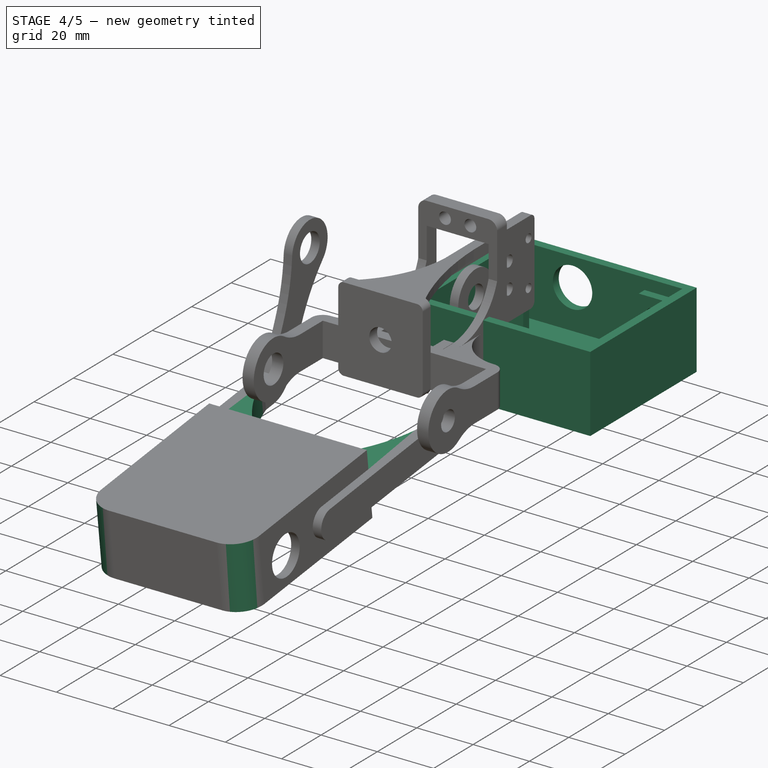
[diagram: stage 4 of 5 — iso view after this stage's code; geometry added in this stage tinted green]
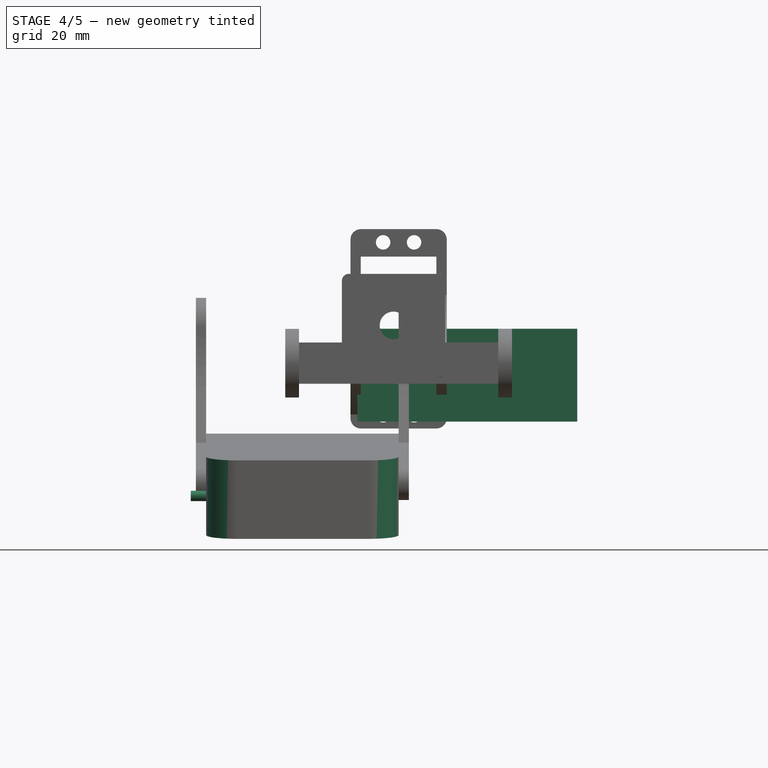
[diagram: stage 4 of 5 — front view after this stage's code; geometry added in this stage tinted green]
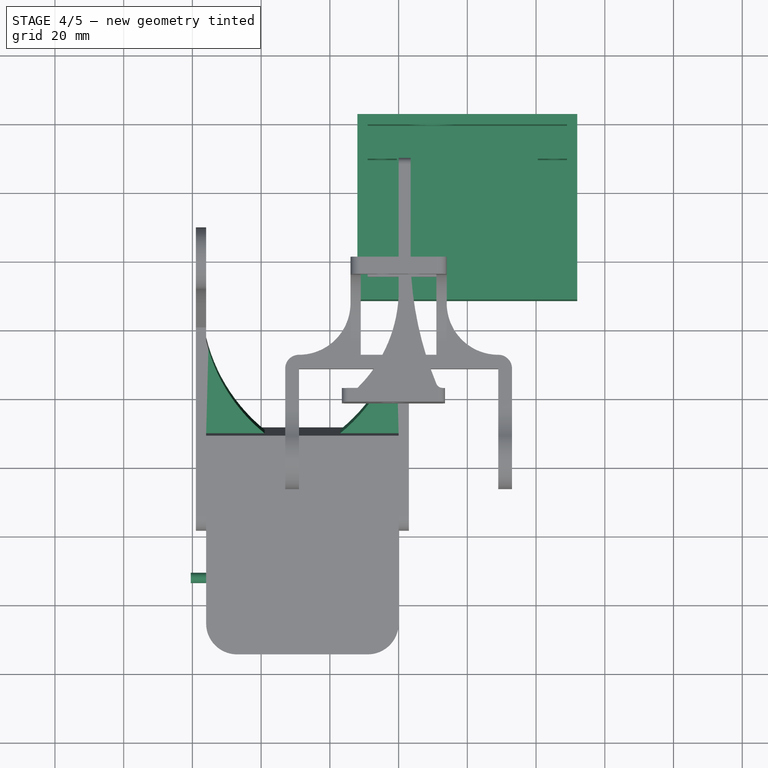
[diagram: stage 4 of 5 — top view after this stage's code; geometry added in this stage tinted green]
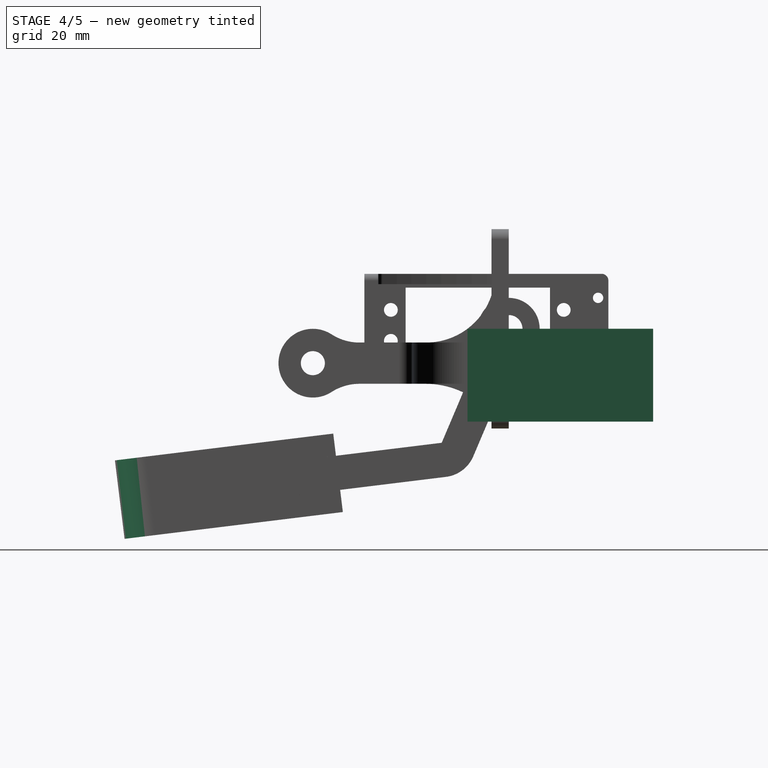
[diagram: stage 4 of 5 — right view after this stage's code; geometry added in this stage tinted green]
FEATURE [Sketcher::SketchObject] Sketch
  MapMode = 5
  Support = -> [XY_Plane]
  sketch-geometry (4):
    g0: LineSegment StartX=-12 StartY=42 StartZ=0 EndX=52 EndY=42 EndZ=0
    g1: LineSegment StartX=52 StartY=42 StartZ=0 EndX=52 EndY=-12 EndZ=0
    g2: LineSegment StartX=52 StartY=-12 StartZ=0 EndX=-12 EndY=-12 EndZ=0
    g3: LineSegment StartX=-12 StartY=-12 StartZ=0 EndX=-12 EndY=42 EndZ=0
  constraints (12):
    c: Coincident(g0,g1)
    c: Coincident(g1,g2)
    c: Coincident(g2,g3)
    c: Coincident(g3,g0)
    c: Horizontal(g0)
    c: Horizontal(g2)
    c: Vertical(g1)
    c: Vertical(g3)
    c: DistanceX(g2,g2) = 64
    c: DistanceY(g1,g1) = 54
    c: DistanceY(g-1,g0) = 42
    c: DistanceX(g0,g-1) = 12
FEATURE [PartDesign::Pad] Pad
  Length = 27
  Length2 = 100
  Profile = -> Sketch
  Reversed = true
  Type = 0
FEATURE [Sketcher::SketchObject] Sketch001
  MapMode = 5
  Support = -> [Pad]
  sketch-geometry (13):
    g0: LineSegment StartX=-9 StartY=39 StartZ=0 EndX=49 EndY=39 EndZ=0
    g1: LineSegment StartX=49 StartY=39 StartZ=0 EndX=49 EndY=32 EndZ=0
    g2: LineSegment StartX=49 StartY=-9 StartZ=0 EndX=-9 EndY=-9 EndZ=0
    g3: LineSegment StartX=-9 StartY=-9 StartZ=0 EndX=-9 EndY=29 EndZ=0
    g4: LineSegment StartX=-9 StartY=32 StartZ=0 EndX=-0.5 EndY=32 EndZ=0
    g5: LineSegment StartX=-0.5 StartY=32 StartZ=0 EndX=-0.5 EndY=29 EndZ=0
    g6: LineSegment StartX=-0.5 StartY=29 StartZ=0 EndX=-9 EndY=29 EndZ=0
    g7: LineSegment StartX=-9 StartY=32 StartZ=0 EndX=-9 EndY=39 EndZ=0
    g8: LineSegment StartX=40.5 StartY=32 StartZ=0 EndX=49 EndY=32 EndZ=0
    g9: LineSegment StartX=49 StartY=29 StartZ=0 EndX=40.5 EndY=29 EndZ=0
    g10: LineSegment StartX=40.5 StartY=29 StartZ=0 EndX=40.5 EndY=32 EndZ=0
    g11: LineSegment StartX=49 StartY=29 StartZ=0 EndX=49 EndY=-9 EndZ=0
    g12: LineSegment StartX=13.9999 StartY=56.4516 StartZ=0 EndX=6 EndY=56.5 EndZ=0
  constraints (36):
    c: Coincident(g0,g1)
    c: Coincident(g11,g2)
    c: Coincident(g2,g3)
    c: Coincident(g7,g0)
    c: Horizontal(g0)
    c: Horizontal(g2)
    c: Vertical(g1)
    c: Vertical(g3)
    c: DistanceX(g0,g-1) = 9
    c: DistanceY(g-1,g0) = 39
    c: DistanceY(g11,g1) = 48
    c: DistanceX(g0,g0) = 58
    c: Coincident(g4,g5)
    c: Coincident(g5,g6)
    c: Horizontal(g4)
    c: Horizontal(g6)
    c: Vertical(g5)
    c: Coincident(g7,g4)
    c: Tangent(g3,g7)
    c: DistanceX(g4,g4) = 8.5
    c: DistanceY(g5,g5) = 3
    c: DistanceY(g-1,g5) = 29
    c: Coincident(g3,g6)
    c: Coincident(g9,g10)
    c: Coincident(g10,g8)
    c: Horizontal(g8)
    c: Horizontal(g9)
    c: Vertical(g10)
    c: Coincident(g1,g8)
    c: Tangent(g1,g11)
    c: Coincident(g9,g11)
    c: DistanceY(g10,g10) = 3
    c: DistanceX(g8,g8) = 8.5
    c: DistanceY(g-1,g9) = 29
    c: Distance(g12) = 8
    c: DistanceX(g0,g12) = 15
FEATURE [PartDesign::Pocket] Pocket
  BaseFeature = -> Pad
  Length = 24
  Length2 = 100
  Profile = -> Sketch001
  Type = 0
FEATURE [Sketcher::SketchObject] Sketch002
  MapMode = 5
  Placement = pos=(0,29,0) rot=(1,0,0;1.5708rad)
  Support = -> [Pocket]
  sketch-geometry (4):
    g0: Circle CenterX=45.3 CenterY=-5.5 CenterZ=0 NormalX=0 NormalY=0 NormalZ=1 AngleXU=0 Radius=2.1
    g1: Circle CenterX=45.3 CenterY=-14.5 CenterZ=0 NormalX=0 NormalY=0 NormalZ=1 AngleXU=0 Radius=2.1
    g2: Circle CenterX=-5 CenterY=-5.5 CenterZ=0 NormalX=0 NormalY=0 NormalZ=1 AngleXU=0 Radius=2.1
    g3: Circle CenterX=-5 CenterY=-14.5 CenterZ=0 NormalX=0 NormalY=0 NormalZ=1 AngleXU=0 Radius=2.1
  constraints (12):
    c: Radius(g0) = 2.1
    c: DistanceX(g-1,g0) = 45.3
    c: DistanceY(g0,g-1) = 5.5
    c: Radius(g1) = 2.1
    c: DistanceX(g-1,g1) = 45.3
    c: DistanceY(g1,g-1) = 14.5
    c: Radius(g2) = 2.1
    c: DistanceY(g2,g-1) = 5.5
    c: DistanceX(g2,g-1) = 5
    c: DistanceX(g3,g-1) = 5
    c: DistanceY(g3,g-1) = 14.5
    c: Radius(g3) = 2.1
FEATURE [PartDesign::Pocket] Pocket001
  BaseFeature = -> Pocket
  Length = 3
  Length2 = 100
  Profile = -> Sketch002
  Type = 0
FEATURE [Sketcher::SketchObject] Sketch003
  MapMode = 5
  Placement = pos=(0,42,0) rot=(0,0.707107,0.707107;3.14159rad)
  Support = -> [Pocket001]
  sketch-geometry (1):
    g0: Circle CenterX=-10 CenterY=-10 CenterZ=0 NormalX=0 NormalY=0 NormalZ=1 AngleXU=0 Radius=7
  constraints (3):
    c: DistanceX(g0,g-1) = 10
    c: DistanceY(g0,g-1) = 10
    c: Radius(g0) = 7
FEATURE [PartDesign::Pocket] Pocket002
  BaseFeature = -> Pocket001
  Length = 3
  Length2 = 100
  Profile = -> Sketch003
  Type = 0
FEATURE [Sketcher::SketchObject] Sketch020
  ExternalGeometry = -> [Pad007]
  MapMode = 5
  Placement = pos=(-56,2.46e-14,-2.46e-14) rot=(0.57735,0.57735,-0.57735;4.18879rad)
  Support = -> [Pad007]
  sketch-geometry (1):
    g0: Circle CenterX=-92.1658 CenterY=48.635 CenterZ=0 NormalX=0 NormalY=0 NormalZ=1 AngleXU=0 Radius=1.5
  constraints (2):
    c: Coincident(g-3,g0)
    c: Radius(g0) = 1.5
FEATURE [PartDesign::Pad] Pad008
  BaseFeature = -> Pad007
  Length = 4.5
  Length2 = 100
  Placement = pos=(0,0,0) rot=(0.57735,0.57735,0.57735;2.0944rad)
  Profile = -> Sketch020
  Type = 0
FEATURE [Sketcher::SketchObject] Sketch021
  ExternalGeometry = -> [Pad008]
  MapMode = 5
  Placement = pos=(1.34e-14,4.94062,-40.2381) rot=(0.706446,0.706446,0.043208;3.22796rad)
  Support = -> [Pad008]
  sketch-geometry (6):
    g0: LineSegment StartX=-27.406 StartY=-2.07e-14 StartZ=0 EndX=-54.406 EndY=-9.6e-15 EndZ=0
    g1: LineSegment StartX=-54.406 StartY=-9.6e-15 StartZ=0 EndX=-54.406 EndY=-17 EndZ=0
    g2: LineSegment StartX=-54.406 StartY=-39 StartZ=0 EndX=-54.406 EndY=-56 EndZ=0
    g3: LineSegment StartX=-27.406 StartY=-56 StartZ=0 EndX=-54.406 EndY=-56 EndZ=0
    g4: ArcOfCircle CenterX=-15.6577 CenterY=-48.6002 CenterZ=0 NormalX=0 NormalY=0 NormalZ=1 AngleXU=0 Radius=50 StartAngle=1.80798 EndAngle=2.45746
    g5: ArcOfCircle CenterX=-15.6577 CenterY=-7.39981 CenterZ=0 NormalX=0 NormalY=0 NormalZ=1 AngleXU=0 Radius=50 StartAngle=3.82573 EndAngle=4.47521
  constraints (18):
    c: Coincident(g3,g2)
    c: Coincident(g2,g-5)
    c: Coincident(g0,g1)
    c: Coincident(g-5,g0)
    c: PointOnObject(g1,g-5)
    c: PointOnObject(g2,g-5)
    c: PointOnObject(g3,g-4)
    c: PointOnObject(g0,g-3)
    c: Distance(g1) = 17
    c: Distance(g2) = 17
    c: Distance(g3) = 27
    c: Distance(g0) = 27
    c: Coincident(g5,g3)
    c: Coincident(g5,g2)
    c: Radius(g5) = 50
    c: Coincident(g4,g1)
    c: Coincident(g4,g0)
    c: Radius(g4) = 50
FEATURE [PartDesign::Pad] Pad009
  BaseFeature = -> Pad008
  Length = 10
  Length2 = 100
  Placement = pos=(0,0,0) rot=(0.57735,0.57735,0.57735;2.0944rad)
  Profile = -> Sketch021
  Reversed = true
  Type = 0
FEATURE [PartDesign::Fillet] Fillet
  Base = -> Pad009 [Edge39,Edge56]
  BaseFeature = -> Pad009
  Placement = pos=(0,0,0) rot=(0.57735,0.57735,0.57735;2.0944rad)
  Radius = 9
FEATURE [PartDesign::Fillet] Fillet001
  Base = -> Fillet [Edge79,Edge97]
  BaseFeature = -> Fillet
  Placement = pos=(0,0,0) rot=(0.57735,0.57735,0.57735;2.0944rad)
  Radius = 6
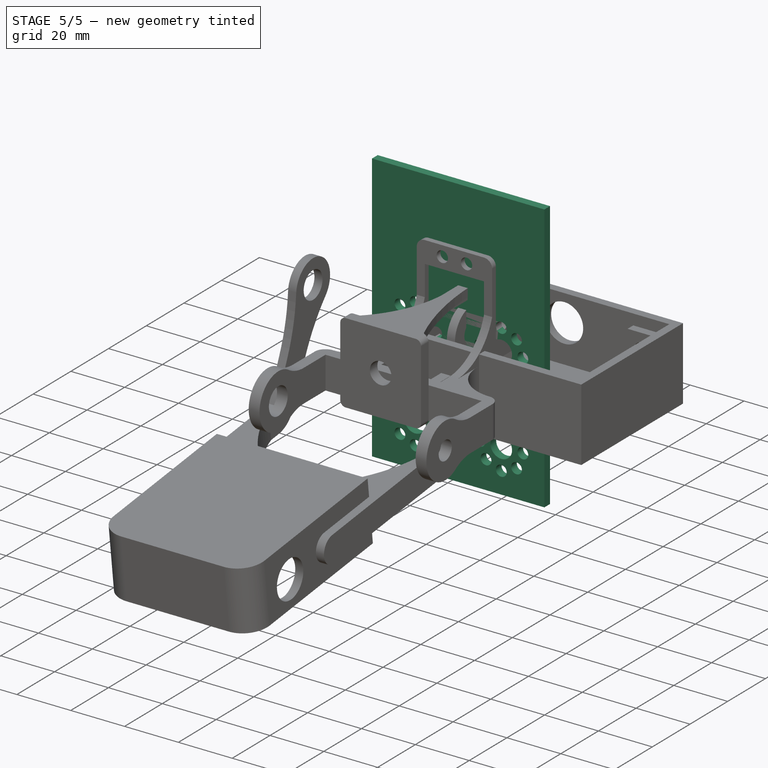
[diagram: stage 5 of 5 — iso view after this stage's code; geometry added in this stage tinted green]
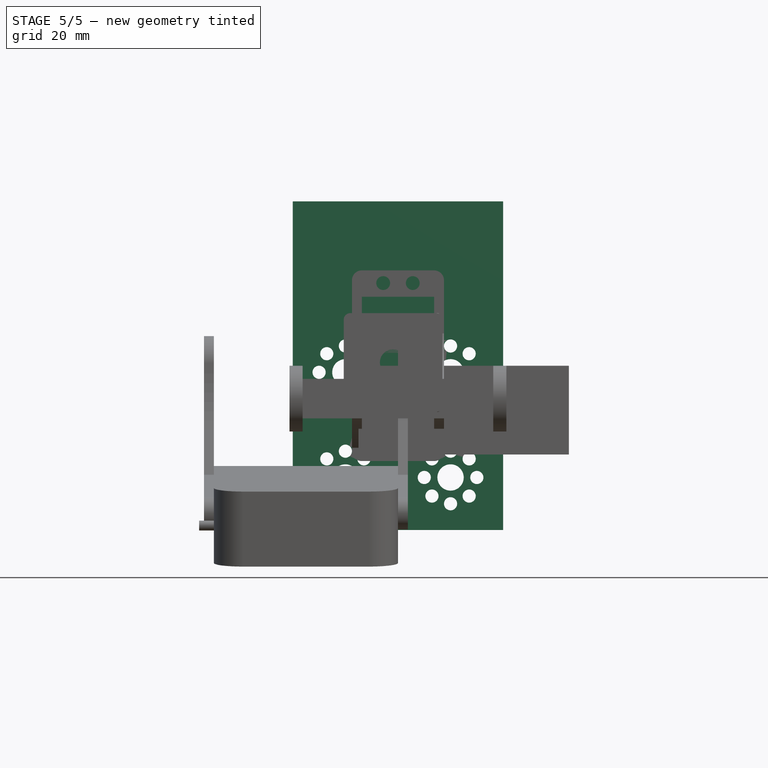
[diagram: stage 5 of 5 — front view after this stage's code; geometry added in this stage tinted green]
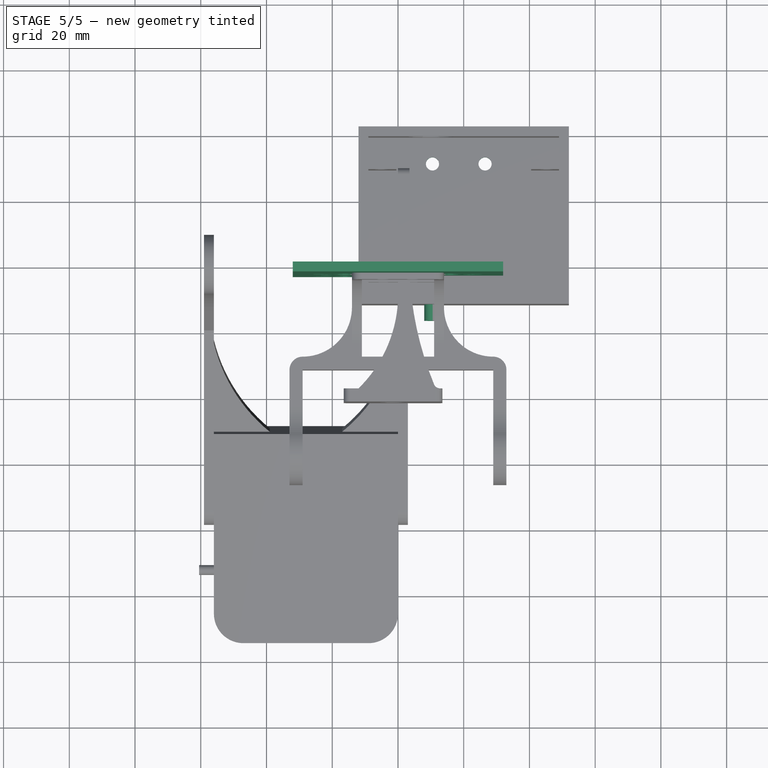
[diagram: stage 5 of 5 — top view after this stage's code; geometry added in this stage tinted green]
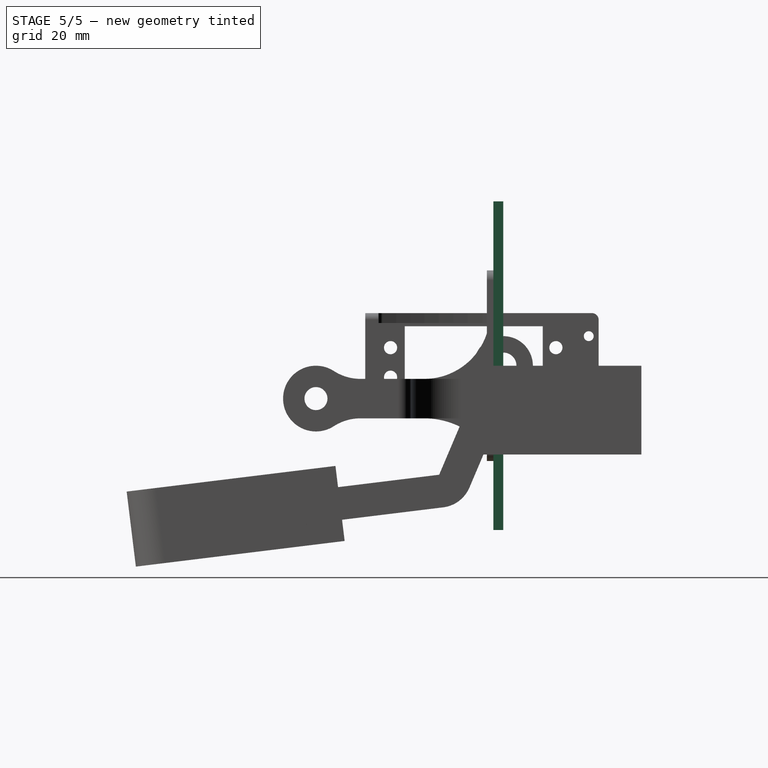
[diagram: stage 5 of 5 — right view after this stage's code; geometry added in this stage tinted green]
FEATURE [Sketcher::SketchObject] Sketch004
  ExternalGeometry = -> [Pocket002]
  MapMode = 5
  Placement = pos=(0,-12,0) rot=(1,0,0;1.5708rad)
  Support = -> [Pocket002]
  sketch-geometry (1):
    g0: Circle CenterX=10 CenterY=-10 CenterZ=0 NormalX=0 NormalY=0 NormalZ=1 AngleXU=0 Radius=2
  constraints (2):
    c: Coincident(g0,g-3)
    c: Radius(g0) = 2
FEATURE [PartDesign::Pad] Pad001
  BaseFeature = -> Pocket002
  Length = 5
  Length2 = 100
  Profile = -> Sketch004
  Type = 0
FEATURE [Sketcher::SketchObject] Sketch005
  MapMode = 5
  Placement = pos=(0,0,0) rot=(1,0,0;1.5708rad)
  Support = -> [XZ_Plane001]
  sketch-geometry (8):
    g0: LineSegment StartX=32 StartY=50 StartZ=0 EndX=32 EndY=-50 EndZ=0
    g1: LineSegment StartX=32 StartY=-50 StartZ=0 EndX=-32 EndY=-50 EndZ=0
    g2: LineSegment StartX=-32 StartY=-50 StartZ=0 EndX=-32 EndY=50 EndZ=0
    g3: Circle CenterX=-16 CenterY=-34 CenterZ=0 NormalX=0 NormalY=0 NormalZ=1 AngleXU=0 Radius=4
    g4: Circle CenterX=16 CenterY=-34 CenterZ=0 NormalX=0 NormalY=0 NormalZ=1 AngleXU=0 Radius=4
    g5: Circle CenterX=-16 CenterY=-2 CenterZ=0 NormalX=0 NormalY=0 NormalZ=1 AngleXU=0 Radius=4
    g6: Circle CenterX=16 CenterY=-2 CenterZ=0 NormalX=0 NormalY=0 NormalZ=1 AngleXU=0 Radius=4
    g7: LineSegment StartX=-32 StartY=50 StartZ=0 EndX=32 EndY=50 EndZ=0
  constraints (20):
    c: Coincident(g1,g2)
    c: Vertical(g2)
    c: DistanceX(g1,g1) = 64
    c: DistanceY(g0,g0) = 100
    c: Radius(g3) = 4
    c: Radius(g4) = 4
    c: Symmetric(g1,g0,g-2)
    c: Symmetric(g3,g4,g-2)
    c: DistanceY(g1,g3) = 16
    c: DistanceX(g1,g3) = 16
    c: Symmetric(g5,g6,g-2)
    c: Radius(g5) = 4
    c: Radius(g6) = 4
    c: DistanceY(g3,g5) = 32
    c: Coincident(g7,g0)
    c: Coincident(g7,g2)
    c: Horizontal(g7)
    c: DistanceX(g1,g5) = 16
    c: Symmetric(g1,g0,g-1)
    c: Coincident(g1,g0)
FEATURE [PartDesign::Pad] Pad002
  Length = 3
  Length2 = 100
  Placement = pos=(0,0,0) rot=(1,0,0;1.5708rad)
  Profile = -> Sketch005
  Type = 0
FEATURE [Sketcher::SketchObject] Sketch006
  ExternalGeometry = -> [Pad002]
  MapMode = 5
  Placement = pos=(0,0,0) rot=(-1,0,0;1.5708rad)
  Support = -> [Pad002]
  sketch-geometry (48):
    g0: Circle CenterX=-24 CenterY=2 CenterZ=0 NormalX=0 NormalY=0 NormalZ=1 AngleXU=0 Radius=2
    g1: Circle CenterX=-8 CenterY=2 CenterZ=0 NormalX=0 NormalY=0 NormalZ=1 AngleXU=0 Radius=2
    g2: Circle CenterX=-16 CenterY=-6 CenterZ=0 NormalX=0 NormalY=0 NormalZ=1 AngleXU=0 Radius=2
    g3: Circle CenterX=-16 CenterY=10 CenterZ=0 NormalX=0 NormalY=0 NormalZ=1 AngleXU=0 Radius=2
    g4: Circle CenterX=16 CenterY=-6 CenterZ=0 NormalX=0 NormalY=0 NormalZ=1 AngleXU=0 Radius=2
    g5: Circle CenterX=8 CenterY=2 CenterZ=0 NormalX=0 NormalY=0 NormalZ=1 AngleXU=0 Radius=2
    g6: Circle CenterX=16 CenterY=10 CenterZ=0 NormalX=0 NormalY=0 NormalZ=1 AngleXU=0 Radius=2
    g7: Circle CenterX=24 CenterY=2 CenterZ=0 NormalX=0 NormalY=0 NormalZ=1 AngleXU=0 Radius=2
    g8: Circle CenterX=-10.3431 CenterY=7.65685 CenterZ=0 NormalX=0 NormalY=0 NormalZ=1 AngleXU=0 Radius=2
    g9: Circle CenterX=-21.6569 CenterY=7.65685 CenterZ=0 NormalX=0 NormalY=0 NormalZ=1 AngleXU=0 Radius=2
    g10: Circle CenterX=-21.6569 CenterY=-3.65685 CenterZ=0 NormalX=0 NormalY=0 NormalZ=1 AngleXU=0 Radius=2
    g11: Circle CenterX=-10.3431 CenterY=-3.65685 CenterZ=0 NormalX=0 NormalY=0 NormalZ=1 AngleXU=0 Radius=2
    g12: LineSegment [constr] StartX=-8 StartY=2 StartZ=0 EndX=-16 EndY=2 EndZ=0
    g13: LineSegment [constr] StartX=-10.3431 StartY=7.65685 StartZ=0 EndX=-16 EndY=2 EndZ=0
    g14: LineSegment [constr] StartX=-16 StartY=10 StartZ=0 EndX=-16 EndY=2 EndZ=0
    g15: LineSegment [constr] StartX=-21.6569 StartY=7.65685 StartZ=0 EndX=-16 EndY=2 EndZ=0
    g16: LineSegment [constr] StartX=-24 StartY=2 StartZ=0 EndX=-16 EndY=2 EndZ=0
    g17: LineSegment [constr] StartX=-21.6569 StartY=-3.65685 StartZ=0 EndX=-16 EndY=2 EndZ=0
    g18: LineSegment [constr] StartX=-16 StartY=-6 StartZ=0 EndX=-16 EndY=2 EndZ=0
    g19: LineSegment [constr] StartX=-10.3431 StartY=-3.65685 StartZ=0 EndX=-16 EndY=2 EndZ=0
    g20: Circle CenterX=21.6569 CenterY=-3.65685 CenterZ=0 NormalX=0 NormalY=0 NormalZ=1 AngleXU=0 Radius=2
    g21: Circle CenterX=10.3431 CenterY=-3.65685 CenterZ=0 NormalX=0 NormalY=0 NormalZ=1 AngleXU=0 Radius=2
    g22: Circle CenterX=10.3431 CenterY=7.65685 CenterZ=0 NormalX=0 NormalY=0 NormalZ=1 AngleXU=0 Radius=2
    g23: Circle CenterX=21.6569 CenterY=7.65685 CenterZ=0 NormalX=0 NormalY=0 NormalZ=1 AngleXU=0 Radius=2
    g24: Circle CenterX=16 CenterY=26 CenterZ=0 NormalX=0 NormalY=0 NormalZ=1 AngleXU=0 Radius=2
    g25: Circle CenterX=21.6569 CenterY=28.3431 CenterZ=0 NormalX=0 NormalY=0 NormalZ=1 AngleXU=0 Radius=2
    g26: Circle CenterX=24 CenterY=34 CenterZ=0 NormalX=0 NormalY=0 NormalZ=1 AngleXU=0 Radius=2
    g27: Circle CenterX=21.6569 CenterY=39.6569 CenterZ=0 NormalX=0 NormalY=0 NormalZ=1 AngleXU=0 Radius=2
    g28: Circle CenterX=16 CenterY=42 CenterZ=0 NormalX=0 NormalY=0 NormalZ=1 AngleXU=0 Radius=2
    g29: Circle CenterX=10.3431 CenterY=39.6569 CenterZ=0 NormalX=0 NormalY=0 NormalZ=1 AngleXU=0 Radius=2
    g30: Circle CenterX=8 CenterY=34 CenterZ=0 NormalX=0 NormalY=0 NormalZ=1 AngleXU=0 Radius=2
    g31: Circle CenterX=10.3431 CenterY=28.3431 CenterZ=0 NormalX=0 NormalY=0 NormalZ=1 AngleXU=0 Radius=2
    g32: LineSegment [constr] StartX=24 StartY=34 StartZ=0 EndX=16 EndY=34 EndZ=0
    g33: LineSegment [constr] StartX=21.6569 StartY=28.3431 StartZ=0 EndX=16 EndY=34 EndZ=0
    g34: LineSegment [constr] StartX=16 StartY=26 StartZ=0 EndX=16 EndY=34 EndZ=0
    g35: LineSegment [constr] StartX=10.3431 StartY=28.3431 StartZ=0 EndX=16 EndY=34 EndZ=0
    g36: LineSegment [constr] StartX=16 StartY=34 StartZ=0 EndX=8 EndY=34 EndZ=0
    g37: LineSegment [constr] StartX=10.3431 StartY=39.6569 StartZ=0 EndX=16 EndY=34 EndZ=0
    g38: LineSegment [constr] StartX=16 StartY=42 StartZ=0 EndX=16 EndY=34 EndZ=0
    g39: LineSegment [constr] StartX=21.6569 StartY=39.6569 StartZ=0 EndX=16 EndY=34 EndZ=0
    g40: Circle CenterX=-16 CenterY=26 CenterZ=0 NormalX=0 NormalY=0 NormalZ=1 AngleXU=0 Radius=2
    g41: Circle CenterX=-24 CenterY=34 CenterZ=0 NormalX=0 NormalY=0 NormalZ=1 AngleXU=0 Radius=2
    g42: Circle CenterX=-21.6569 CenterY=28.3431 CenterZ=0 NormalX=0 NormalY=0 NormalZ=1 AngleXU=0 Radius=2
    g43: Circle CenterX=-21.6569 CenterY=39.6569 CenterZ=0 NormalX=0 NormalY=0 NormalZ=1 AngleXU=0 Radius=2
    g44: Circle CenterX=-16 CenterY=42 CenterZ=0 NormalX=0 NormalY=0 NormalZ=1 AngleXU=0 Radius=2
    g45: Circle CenterX=-8 CenterY=34 CenterZ=0 NormalX=0 NormalY=0 NormalZ=1 AngleXU=0 Radius=2
    g46: Circle CenterX=-10.3431 CenterY=39.6569 CenterZ=0 NormalX=0 NormalY=0 NormalZ=1 AngleXU=0 Radius=2
    g47: Circle CenterX=-10.3431 CenterY=28.3431 CenterZ=0 NormalX=0 NormalY=0 NormalZ=1 AngleXU=0 Radius=2
  constraints (112):
    c: Radius(g0) = 2
    c: DistanceX(g0,g-3) = 8
    c: DistanceY(g-3,g0) = 0
    c: Radius(g2) = 2
    c: Radius(g3) = 2
    c: Radius(g1) = 2
    c: Radius(g5) = 2
    c: Radius(g4) = 2
    c: Radius(g7) = 2
    c: Radius(g6) = 2
    c: Distance(g3,g-3) = 8
    c: Distance(g1,g-3) = 8
    c: Distance(g2,g-3) = 8
    c: Radius(g8) = 2
    c: Radius(g9) = 2
    c: Radius(g10) = 2
    c: Radius(g11) = 2
    c: Distance(g8,g-3) = 8
    c: Distance(g11,g-3) = 8
    c: Distance(g10,g-3) = 8
    c: Distance(g9,g-3) = 8
    c: Coincident(g18,g13)
    c: Coincident(g13,g14)
    c: Coincident(g15,g13)
    c: Coincident(g19,g17)
    c: Coincident(g16,g17)
    c: Coincident(g16,g13)
    c: Coincident(g-3,g13)
    c: Coincident(g11,g19)
    c: Coincident(g2,g18)
    c: Coincident(g17,g10)
    c: Coincident(g16,g0)
    c: Angle(g19,g12) = 0.785398
    c: Angle(g12,g13) = 0.785398
    c: Angle(g13,g14) = 0.785398
    c: Angle(g14,g15) = 0.785398
    c: Angle(g15,g16) = 0.785398
    c: Angle(g16,g17) = 0.785398
    c: Angle(g17,g18) = 0.785398
    c: Coincident(g12,g13)
    c: Coincident(g3,g14)
    c: Coincident(g9,g15)
    c: Coincident(g1,g12)
    c: Coincident(g13,g8)
    c: Symmetric(g5,g1,g-2)
    c: Symmetric(g4,g2,g-2)
    c: Symmetric(g6,g3,g-2)
    c: Symmetric(g7,g0,g-2)
    c: Radius(g23) = 2
    c: Radius(g20) = 2
    c: Radius(g21) = 2
    c: Radius(g22) = 2
    c: Symmetric(g22,g8,g-2)
    c: Symmetric(g23,g9,g-2)
    c: Symmetric(g10,g20,g-2)
    c: Symmetric(g21,g11,g-2)
    c: Radius(g31) = 2
    c: Radius(g24) = 2
    c: Radius(g25) = 2
    c: Radius(g26) = 2
    c: Radius(g27) = 2
    c: Radius(g28) = 2
    c: Radius(g29) = 2
    c: Radius(g30) = 2
    c: Coincident(g33,g34)
    c: Coincident(g35,g33)
    c: Coincident(g33,g36)
    c: Coincident(g38,g37)
    c: Coincident(g37,g33)
    c: Coincident(g32,g39)
    c: Coincident(g32,g33)
    c: Coincident(g32,g-5)
    c: Distance(g35) = 8
    c: Coincident(g31,g35)
    c: Coincident(g30,g36)
    c: Distance(g36) = 8
    c: Coincident(g29,g37)
    c: Distance(g37) = 8
    c: Coincident(g28,g38)
    c: Distance(g38) = 8
    c: Coincident(g27,g39)
    c: Distance(g39) = 8
    c: Coincident(g32,g26)
    c: Distance(g32) = 8
    c: Distance(g33) = 8
    c: Distance(g34) = 8
    c: Coincident(g33,g25)
    c: Coincident(g34,g24)
    c: Angle(g35,g34) = 0.785398
    c: Angle(g36,g35) = 0.785398
    c: Angle(g37,g36) = 0.785398
    c: Angle(g38,g37) = 0.785398
    c: Angle(g39,g38) = 0.785398
    c: Angle(g32,g39) = 0.785398
    c: Angle(g33,g32) = 0.785398
    c: Horizontal(g32)
    c: Radius(g40) = 2
    c: Radius(g42) = 2
    c: Radius(g41) = 2
    c: Radius(g43) = 2
    c: Radius(g44) = 2
    c: Radius(g46) = 2
    c: Radius(g45) = 2
    c: Symmetric(g30,g45,g-2)
    c: Symmetric(g29,g46,g-2)
    c: Symmetric(g28,g44,g-2)
    c: Symmetric(g27,g43,g-2)
    c: Symmetric(g26,g41,g-2)
    c: Symmetric(g25,g42,g-2)
    c: Radius(g47) = 2
    c: Symmetric(g31,g47,g-2)
    c: Symmetric(g24,g40,g-2)
FEATURE [PartDesign::Pocket] Pocket003
  BaseFeature = -> Pad002
  Length = 3
  Length2 = 100
  Placement = pos=(0,0,0) rot=(1,0,0;1.5708rad)
  Profile = -> Sketch006
  Type = 0
FEATURE [PartDesign::Body] Body001  label="Плита №1"
  Group = -> [Sketch005,Pad002,Sketch006,Pocket003]
  Origin = -> Origin001
  Tip = -> Pocket003
FEATURE [Sketcher::SketchObject] Sketch008
  MapMode = 5
  Placement = pos=(0,0,0) rot=(1,0,0;1.5708rad)
  Support = -> [XZ_Plane002]
  sketch-geometry (8):
    g0: LineSegment StartX=32 StartY=50 StartZ=0 EndX=32 EndY=-50 EndZ=0
    g1: LineSegment StartX=32 StartY=-50 StartZ=0 EndX=-32 EndY=-50 EndZ=0
    g2: LineSegment StartX=-32 StartY=-50 StartZ=0 EndX=-32 EndY=50 EndZ=0
    g3: Circle CenterX=-16 CenterY=-34 CenterZ=0 NormalX=0 NormalY=0 NormalZ=1 AngleXU=0 Radius=4
    g4: Circle CenterX=16 CenterY=-34 CenterZ=0 NormalX=0 NormalY=0 NormalZ=1 AngleXU=0 Radius=4
    g5: Circle CenterX=-16 CenterY=-2 CenterZ=0 NormalX=0 NormalY=0 NormalZ=1 AngleXU=0 Radius=4
    g6: Circle CenterX=16 CenterY=-2 CenterZ=0 NormalX=0 NormalY=0 NormalZ=1 AngleXU=0 Radius=4
    g7: LineSegment StartX=-32 StartY=50 StartZ=0 EndX=32 EndY=50 EndZ=0
  constraints (20):
    c: Coincident(g1,g2)
    c: Vertical(g2)
    c: DistanceX(g1,g1) = 64
    c: DistanceY(g0,g0) = 100
    c: Radius(g3) = 4
    c: Radius(g4) = 4
    c: Symmetric(g1,g0,g-2)
    c: Symmetric(g3,g4,g-2)
    c: DistanceY(g1,g3) = 16
    c: DistanceX(g1,g3) = 16
    c: Symmetric(g5,g6,g-2)
    c: Radius(g5) = 4
    c: Radius(g6) = 4
    c: DistanceY(g3,g5) = 32
    c: Coincident(g7,g0)
    c: Coincident(g7,g2)
    c: Horizontal(g7)
    c: DistanceX(g1,g5) = 16
    c: Symmetric(g1,g0,g-1)
    c: Coincident(g1,g0)
FEATURE [PartDesign::Pad] Pad003
  Length = 3
  Length2 = 100
  Placement = pos=(0,0,0) rot=(1,0,0;1.5708rad)
  Profile = -> Sketch008
  Type = 0
FEATURE [Sketcher::SketchObject] Sketch007
  ExternalGeometry = -> [Pad003]
  MapMode = 5
  Placement = pos=(0,0,0) rot=(-1,0,0;1.5708rad)
  Support = -> [Pad003]
  sketch-geometry (48):
    g0: Circle CenterX=-24 CenterY=2 CenterZ=0 NormalX=0 NormalY=0 NormalZ=1 AngleXU=0 Radius=2
    g1: Circle CenterX=-8 CenterY=2 CenterZ=0 NormalX=0 NormalY=0 NormalZ=1 AngleXU=0 Radius=2
    g2: Circle CenterX=-16 CenterY=-6 CenterZ=0 NormalX=0 NormalY=0 NormalZ=1 AngleXU=0 Radius=2
    g3: Circle CenterX=-16 CenterY=10 CenterZ=0 NormalX=0 NormalY=0 NormalZ=1 AngleXU=0 Radius=2
    g4: Circle CenterX=16 CenterY=-6 CenterZ=0 NormalX=0 NormalY=0 NormalZ=1 AngleXU=0 Radius=2
    g5: Circle CenterX=8 CenterY=2 CenterZ=0 NormalX=0 NormalY=0 NormalZ=1 AngleXU=0 Radius=2
    g6: Circle CenterX=16 CenterY=10 CenterZ=0 NormalX=0 NormalY=0 NormalZ=1 AngleXU=0 Radius=2
    g7: Circle CenterX=24 CenterY=2 CenterZ=0 NormalX=0 NormalY=0 NormalZ=1 AngleXU=0 Radius=2
    g8: Circle CenterX=-10.3431 CenterY=7.65685 CenterZ=0 NormalX=0 NormalY=0 NormalZ=1 AngleXU=0 Radius=2
    g9: Circle CenterX=-21.6569 CenterY=7.65685 CenterZ=0 NormalX=0 NormalY=0 NormalZ=1 AngleXU=0 Radius=2
    g10: Circle CenterX=-21.6569 CenterY=-3.65685 CenterZ=0 NormalX=0 NormalY=0 NormalZ=1 AngleXU=0 Radius=2
    g11: Circle CenterX=-10.3431 CenterY=-3.65685 CenterZ=0 NormalX=0 NormalY=0 NormalZ=1 AngleXU=0 Radius=2
    g12: LineSegment [constr] StartX=-8 StartY=2 StartZ=0 EndX=-16 EndY=2 EndZ=0
    g13: LineSegment [constr] StartX=-10.3431 StartY=7.65685 StartZ=0 EndX=-16 EndY=2 EndZ=0
    g14: LineSegment [constr] StartX=-16 StartY=10 StartZ=0 EndX=-16 EndY=2 EndZ=0
    g15: LineSegment [constr] StartX=-21.6569 StartY=7.65685 StartZ=0 EndX=-16 EndY=2 EndZ=0
    g16: LineSegment [constr] StartX=-24 StartY=2 StartZ=0 EndX=-16 EndY=2 EndZ=0
    g17: LineSegment [constr] StartX=-21.6569 StartY=-3.65685 StartZ=0 EndX=-16 EndY=2 EndZ=0
    g18: LineSegment [constr] StartX=-16 StartY=-6 StartZ=0 EndX=-16 EndY=2 EndZ=0
    g19: LineSegment [constr] StartX=-10.3431 StartY=-3.65685 StartZ=0 EndX=-16 EndY=2 EndZ=0
    g20: Circle CenterX=21.6569 CenterY=-3.65685 CenterZ=0 NormalX=0 NormalY=0 NormalZ=1 AngleXU=0 Radius=2
    g21: Circle CenterX=10.3431 CenterY=-3.65685 CenterZ=0 NormalX=0 NormalY=0 NormalZ=1 AngleXU=0 Radius=2
    g22: Circle CenterX=10.3431 CenterY=7.65685 CenterZ=0 NormalX=0 NormalY=0 NormalZ=1 AngleXU=0 Radius=2
    g23: Circle CenterX=21.6569 CenterY=7.65685 CenterZ=0 NormalX=0 NormalY=0 NormalZ=1 AngleXU=0 Radius=2
    g24: Circle CenterX=16 CenterY=26 CenterZ=0 NormalX=0 NormalY=0 NormalZ=1 AngleXU=0 Radius=2
    g25: Circle CenterX=21.6569 CenterY=28.3431 CenterZ=0 NormalX=0 NormalY=0 NormalZ=1 AngleXU=0 Radius=2
    g26: Circle CenterX=24 CenterY=34 CenterZ=0 NormalX=0 NormalY=0 NormalZ=1 AngleXU=0 Radius=2
    g27: Circle CenterX=21.6569 CenterY=39.6569 CenterZ=0 NormalX=0 NormalY=0 NormalZ=1 AngleXU=0 Radius=2
    g28: Circle CenterX=16 CenterY=42 CenterZ=0 NormalX=0 NormalY=0 NormalZ=1 AngleXU=0 Radius=2
    g29: Circle CenterX=10.3431 CenterY=39.6569 CenterZ=0 NormalX=0 NormalY=0 NormalZ=1 AngleXU=0 Radius=2
    g30: Circle CenterX=8 CenterY=34 CenterZ=0 NormalX=0 NormalY=0 NormalZ=1 AngleXU=0 Radius=2
    g31: Circle CenterX=10.3431 CenterY=28.3431 CenterZ=0 NormalX=0 NormalY=0 NormalZ=1 AngleXU=0 Radius=2
    g32: LineSegment [constr] StartX=24 StartY=34 StartZ=0 EndX=16 EndY=34 EndZ=0
    g33: LineSegment [constr] StartX=21.6569 StartY=28.3431 StartZ=0 EndX=16 EndY=34 EndZ=0
    g34: LineSegment [constr] StartX=16 StartY=26 StartZ=0 EndX=16 EndY=34 EndZ=0
    g35: LineSegment [constr] StartX=10.3431 StartY=28.3431 StartZ=0 EndX=16 EndY=34 EndZ=0
    g36: LineSegment [constr] StartX=16 StartY=34 StartZ=0 EndX=8 EndY=34 EndZ=0
    g37: LineSegment [constr] StartX=10.3431 StartY=39.6569 StartZ=0 EndX=16 EndY=34 EndZ=0
    g38: LineSegment [constr] StartX=16 StartY=42 StartZ=0 EndX=16 EndY=34 EndZ=0
    g39: LineSegment [constr] StartX=21.6569 StartY=39.6569 StartZ=0 EndX=16 EndY=34 EndZ=0
    g40: Circle CenterX=-16 CenterY=26 CenterZ=0 NormalX=0 NormalY=0 NormalZ=1 AngleXU=0 Radius=2
    g41: Circle CenterX=-24 CenterY=34 CenterZ=0 NormalX=0 NormalY=0 NormalZ=1 AngleXU=0 Radius=2
    g42: Circle CenterX=-21.6569 CenterY=28.3431 CenterZ=0 NormalX=0 NormalY=0 NormalZ=1 AngleXU=0 Radius=2
    g43: Circle CenterX=-21.6569 CenterY=39.6569 CenterZ=0 NormalX=0 NormalY=0 NormalZ=1 AngleXU=0 Radius=2
    g44: Circle CenterX=-16 CenterY=42 CenterZ=0 NormalX=0 NormalY=0 NormalZ=1 AngleXU=0 Radius=2
    g45: Circle CenterX=-8 CenterY=34 CenterZ=0 NormalX=0 NormalY=0 NormalZ=1 AngleXU=0 Radius=2
    g46: Circle CenterX=-10.3431 CenterY=39.6569 CenterZ=0 NormalX=0 NormalY=0 NormalZ=1 AngleXU=0 Radius=2
    g47: Circle CenterX=-10.3431 CenterY=28.3431 CenterZ=0 NormalX=0 NormalY=0 NormalZ=1 AngleXU=0 Radius=2
  constraints (112):
    c: Radius(g0) = 2
    c: DistanceX(g0,g-3) = 8
    c: DistanceY(g-3,g0) = 0
    c: Radius(g2) = 2
    c: Radius(g3) = 2
    c: Radius(g1) = 2
    c: Radius(g5) = 2
    c: Radius(g4) = 2
    c: Radius(g7) = 2
    c: Radius(g6) = 2
    c: Distance(g3,g-3) = 8
    c: Distance(g1,g-3) = 8
    c: Distance(g2,g-3) = 8
    c: Radius(g8) = 2
    c: Radius(g9) = 2
    c: Radius(g10) = 2
    c: Radius(g11) = 2
    c: Distance(g8,g-3) = 8
    c: Distance(g11,g-3) = 8
    c: Distance(g10,g-3) = 8
    c: Distance(g9,g-3) = 8
    c: Coincident(g18,g13)
    c: Coincident(g13,g14)
    c: Coincident(g15,g13)
    c: Coincident(g19,g17)
    c: Coincident(g16,g17)
    c: Coincident(g16,g13)
    c: Coincident(g-3,g13)
    c: Coincident(g11,g19)
    c: Coincident(g2,g18)
    c: Coincident(g17,g10)
    c: Coincident(g16,g0)
    c: Angle(g19,g12) = 0.785398
    c: Angle(g12,g13) = 0.785398
    c: Angle(g13,g14) = 0.785398
    c: Angle(g14,g15) = 0.785398
    c: Angle(g15,g16) = 0.785398
    c: Angle(g16,g17) = 0.785398
    c: Angle(g17,g18) = 0.785398
    c: Coincident(g12,g13)
    c: Coincident(g3,g14)
    c: Coincident(g9,g15)
    c: Coincident(g1,g12)
    c: Coincident(g13,g8)
    c: Symmetric(g5,g1,g-2)
    c: Symmetric(g4,g2,g-2)
    c: Symmetric(g6,g3,g-2)
    c: Symmetric(g7,g0,g-2)
    c: Radius(g23) = 2
    c: Radius(g20) = 2
    c: Radius(g21) = 2
    c: Radius(g22) = 2
    c: Symmetric(g22,g8,g-2)
    c: Symmetric(g23,g9,g-2)
    c: Symmetric(g10,g20,g-2)
    c: Symmetric(g21,g11,g-2)
    c: Radius(g31) = 2
    c: Radius(g24) = 2
    c: Radius(g25) = 2
    c: Radius(g26) = 2
    c: Radius(g27) = 2
    c: Radius(g28) = 2
    c: Radius(g29) = 2
    c: Radius(g30) = 2
    c: Coincident(g33,g34)
    c: Coincident(g35,g33)
    c: Coincident(g33,g36)
    c: Coincident(g38,g37)
    c: Coincident(g37,g33)
    c: Coincident(g32,g39)
    c: Coincident(g32,g33)
    c: Coincident(g32,g-5)
    c: Distance(g35) = 8
    c: Coincident(g31,g35)
    c: Coincident(g30,g36)
    c: Distance(g36) = 8
    c: Coincident(g29,g37)
    c: Distance(g37) = 8
    c: Coincident(g28,g38)
    c: Distance(g38) = 8
    c: Coincident(g27,g39)
    c: Distance(g39) = 8
    c: Coincident(g32,g26)
    c: Distance(g32) = 8
    c: Distance(g33) = 8
    c: Distance(g34) = 8
    c: Coincident(g33,g25)
    c: Coincident(g34,g24)
    c: Angle(g35,g34) = 0.785398
    c: Angle(g36,g35) = 0.785398
    c: Angle(g37,g36) = 0.785398
    c: Angle(g38,g37) = 0.785398
    c: Angle(g39,g38) = 0.785398
    c: Angle(g32,g39) = 0.785398
    c: Angle(g33,g32) = 0.785398
    c: Horizontal(g32)
    c: Radius(g40) = 2
    c: Radius(g42) = 2
    c: Radius(g41) = 2
    c: Radius(g43) = 2
    c: Radius(g44) = 2
    c: Radius(g46) = 2
    c: Radius(g45) = 2
    c: Symmetric(g30,g45,g-2)
    c: Symmetric(g29,g46,g-2)
    c: Symmetric(g28,g44,g-2)
    c: Symmetric(g27,g43,g-2)
    c: Symmetric(g26,g41,g-2)
    c: Symmetric(g25,g42,g-2)
    c: Radius(g47) = 2
    c: Symmetric(g31,g47,g-2)
    c: Symmetric(g24,g40,g-2)
FEATURE [PartDesign::Pocket] Pocket004
  BaseFeature = -> Pad003
  Length = 3
  Length2 = 100
  Placement = pos=(0,0,0) rot=(1,0,0;1.5708rad)
  Profile = -> Sketch007
  Type = 0
FEATURE [PartDesign::Body] Body002  label="Плита №2"
  Group = -> [Sketch008,Pad003,Sketch007,Pocket004]
  Origin = -> Origin002
  Placement = pos=(-35,-3,0) rot=(0,0,1;1.5708rad)
  Tip = -> Pocket004
FEATURE [Sketcher::SketchObject] Sketch010
  MapMode = 5
  Placement = pos=(0,0,0) rot=(1,0,0;1.5708rad)
  Support = -> [XZ_Plane003]
  sketch-geometry (8):
    g0: LineSegment StartX=32 StartY=50 StartZ=0 EndX=32 EndY=-50 EndZ=0
    g1: LineSegment StartX=32 StartY=-50 StartZ=0 EndX=-32 EndY=-50 EndZ=0
    g2: LineSegment StartX=-32 StartY=-50 StartZ=0 EndX=-32 EndY=50 EndZ=0
    g3: Circle CenterX=-16 CenterY=-34 CenterZ=0 NormalX=0 NormalY=0 NormalZ=1 AngleXU=0 Radius=4
    g4: Circle CenterX=16 CenterY=-34 CenterZ=0 NormalX=0 NormalY=0 NormalZ=1 AngleXU=0 Radius=4
    g5: Circle CenterX=-16 CenterY=-2 CenterZ=0 NormalX=0 NormalY=0 NormalZ=1 AngleXU=0 Radius=4
    g6: Circle CenterX=16 CenterY=-2 CenterZ=0 NormalX=0 NormalY=0 NormalZ=1 AngleXU=0 Radius=4
    g7: LineSegment StartX=-32 StartY=50 StartZ=0 EndX=32 EndY=50 EndZ=0
  constraints (20):
    c: Coincident(g1,g2)
    c: Vertical(g2)
    c: DistanceX(g1,g1) = 64
    c: DistanceY(g0,g0) = 100
    c: Radius(g3) = 4
    c: Radius(g4) = 4
    c: Symmetric(g1,g0,g-2)
    c: Symmetric(g3,g4,g-2)
    c: DistanceY(g1,g3) = 16
    c: DistanceX(g1,g3) = 16
    c: Symmetric(g5,g6,g-2)
    c: Radius(g5) = 4
    c: Radius(g6) = 4
    c: DistanceY(g3,g5) = 32
    c: Coincident(g7,g0)
    c: Coincident(g7,g2)
    c: Horizontal(g7)
    c: DistanceX(g1,g5) = 16
    c: Symmetric(g1,g0,g-1)
    c: Coincident(g1,g0)
FEATURE [PartDesign::Pad] Pad004
  Length = 3
  Length2 = 100
  Placement = pos=(0,0,0) rot=(1,0,0;1.5708rad)
  Profile = -> Sketch010
  Type = 0
FEATURE [Sketcher::SketchObject] Sketch009
  ExternalGeometry = -> [Pad004]
  MapMode = 5
  Placement = pos=(0,0,0) rot=(-1,0,0;1.5708rad)
  Support = -> [Pad004]
  sketch-geometry (48):
    g0: Circle CenterX=-24 CenterY=2 CenterZ=0 NormalX=0 NormalY=0 NormalZ=1 AngleXU=0 Radius=2
    g1: Circle CenterX=-8 CenterY=2 CenterZ=0 NormalX=0 NormalY=0 NormalZ=1 AngleXU=0 Radius=2
    g2: Circle CenterX=-16 CenterY=-6 CenterZ=0 NormalX=0 NormalY=0 NormalZ=1 AngleXU=0 Radius=2
    g3: Circle CenterX=-16 CenterY=10 CenterZ=0 NormalX=0 NormalY=0 NormalZ=1 AngleXU=0 Radius=2
    g4: Circle CenterX=16 CenterY=-6 CenterZ=0 NormalX=0 NormalY=0 NormalZ=1 AngleXU=0 Radius=2
    g5: Circle CenterX=8 CenterY=2 CenterZ=0 NormalX=0 NormalY=0 NormalZ=1 AngleXU=0 Radius=2
    g6: Circle CenterX=16 CenterY=10 CenterZ=0 NormalX=0 NormalY=0 NormalZ=1 AngleXU=0 Radius=2
    g7: Circle CenterX=24 CenterY=2 CenterZ=0 NormalX=0 NormalY=0 NormalZ=1 AngleXU=0 Radius=2
    g8: Circle CenterX=-10.3431 CenterY=7.65685 CenterZ=0 NormalX=0 NormalY=0 NormalZ=1 AngleXU=0 Radius=2
    g9: Circle CenterX=-21.6569 CenterY=7.65685 CenterZ=0 NormalX=0 NormalY=0 NormalZ=1 AngleXU=0 Radius=2
    g10: Circle CenterX=-21.6569 CenterY=-3.65685 CenterZ=0 NormalX=0 NormalY=0 NormalZ=1 AngleXU=0 Radius=2
    g11: Circle CenterX=-10.3431 CenterY=-3.65685 CenterZ=0 NormalX=0 NormalY=0 NormalZ=1 AngleXU=0 Radius=2
    g12: LineSegment [constr] StartX=-8 StartY=2 StartZ=0 EndX=-16 EndY=2 EndZ=0
    g13: LineSegment [constr] StartX=-10.3431 StartY=7.65685 StartZ=0 EndX=-16 EndY=2 EndZ=0
    g14: LineSegment [constr] StartX=-16 StartY=10 StartZ=0 EndX=-16 EndY=2 EndZ=0
    g15: LineSegment [constr] StartX=-21.6569 StartY=7.65685 StartZ=0 EndX=-16 EndY=2 EndZ=0
    g16: LineSegment [constr] StartX=-24 StartY=2 StartZ=0 EndX=-16 EndY=2 EndZ=0
    g17: LineSegment [constr] StartX=-21.6569 StartY=-3.65685 StartZ=0 EndX=-16 EndY=2 EndZ=0
    g18: LineSegment [constr] StartX=-16 StartY=-6 StartZ=0 EndX=-16 EndY=2 EndZ=0
    g19: LineSegment [constr] StartX=-10.3431 StartY=-3.65685 StartZ=0 EndX=-16 EndY=2 EndZ=0
    g20: Circle CenterX=21.6569 CenterY=-3.65685 CenterZ=0 NormalX=0 NormalY=0 NormalZ=1 AngleXU=0 Radius=2
    g21: Circle CenterX=10.3431 CenterY=-3.65685 CenterZ=0 NormalX=0 NormalY=0 NormalZ=1 AngleXU=0 Radius=2
    g22: Circle CenterX=10.3431 CenterY=7.65685 CenterZ=0 NormalX=0 NormalY=0 NormalZ=1 AngleXU=0 Radius=2
    g23: Circle CenterX=21.6569 CenterY=7.65685 CenterZ=0 NormalX=0 NormalY=0 NormalZ=1 AngleXU=0 Radius=2
    g24: Circle CenterX=16 CenterY=26 CenterZ=0 NormalX=0 NormalY=0 NormalZ=1 AngleXU=0 Radius=2
    g25: Circle CenterX=21.6569 CenterY=28.3431 CenterZ=0 NormalX=0 NormalY=0 NormalZ=1 AngleXU=0 Radius=2
    g26: Circle CenterX=24 CenterY=34 CenterZ=0 NormalX=0 NormalY=0 NormalZ=1 AngleXU=0 Radius=2
    g27: Circle CenterX=21.6569 CenterY=39.6569 CenterZ=0 NormalX=0 NormalY=0 NormalZ=1 AngleXU=0 Radius=2
    g28: Circle CenterX=16 CenterY=42 CenterZ=0 NormalX=0 NormalY=0 NormalZ=1 AngleXU=0 Radius=2
    g29: Circle CenterX=10.3431 CenterY=39.6569 CenterZ=0 NormalX=0 NormalY=0 NormalZ=1 AngleXU=0 Radius=2
    g30: Circle CenterX=8 CenterY=34 CenterZ=0 NormalX=0 NormalY=0 NormalZ=1 AngleXU=0 Radius=2
    g31: Circle CenterX=10.3431 CenterY=28.3431 CenterZ=0 NormalX=0 NormalY=0 NormalZ=1 AngleXU=0 Radius=2
    g32: LineSegment [constr] StartX=24 StartY=34 StartZ=0 EndX=16 EndY=34 EndZ=0
    g33: LineSegment [constr] StartX=21.6569 StartY=28.3431 StartZ=0 EndX=16 EndY=34 EndZ=0
    g34: LineSegment [constr] StartX=16 StartY=26 StartZ=0 EndX=16 EndY=34 EndZ=0
    g35: LineSegment [constr] StartX=10.3431 StartY=28.3431 StartZ=0 EndX=16 EndY=34 EndZ=0
    g36: LineSegment [constr] StartX=16 StartY=34 StartZ=0 EndX=8 EndY=34 EndZ=0
    g37: LineSegment [constr] StartX=10.3431 StartY=39.6569 StartZ=0 EndX=16 EndY=34 EndZ=0
    g38: LineSegment [constr] StartX=16 StartY=42 StartZ=0 EndX=16 EndY=34 EndZ=0
    g39: LineSegment [constr] StartX=21.6569 StartY=39.6569 StartZ=0 EndX=16 EndY=34 EndZ=0
    g40: Circle CenterX=-16 CenterY=26 CenterZ=0 NormalX=0 NormalY=0 NormalZ=1 AngleXU=0 Radius=2
    g41: Circle CenterX=-24 CenterY=34 CenterZ=0 NormalX=0 NormalY=0 NormalZ=1 AngleXU=0 Radius=2
    g42: Circle CenterX=-21.6569 CenterY=28.3431 CenterZ=0 NormalX=0 NormalY=0 NormalZ=1 AngleXU=0 Radius=2
    g43: Circle CenterX=-21.6569 CenterY=39.6569 CenterZ=0 NormalX=0 NormalY=0 NormalZ=1 AngleXU=0 Radius=2
    g44: Circle CenterX=-16 CenterY=42 CenterZ=0 NormalX=0 NormalY=0 NormalZ=1 AngleXU=0 Radius=2
    g45: Circle CenterX=-8 CenterY=34 CenterZ=0 NormalX=0 NormalY=0 NormalZ=1 AngleXU=0 Radius=2
    g46: Circle CenterX=-10.3431 CenterY=39.6569 CenterZ=0 NormalX=0 NormalY=0 NormalZ=1 AngleXU=0 Radius=2
    g47: Circle CenterX=-10.3431 CenterY=28.3431 CenterZ=0 NormalX=0 NormalY=0 NormalZ=1 AngleXU=0 Radius=2
  constraints (112):
    c: Radius(g0) = 2
    c: DistanceX(g0,g-3) = 8
    c: DistanceY(g-3,g0) = 0
    c: Radius(g2) = 2
    c: Radius(g3) = 2
    c: Radius(g1) = 2
    c: Radius(g5) = 2
    c: Radius(g4) = 2
    c: Radius(g7) = 2
    c: Radius(g6) = 2
    c: Distance(g3,g-3) = 8
    c: Distance(g1,g-3) = 8
    c: Distance(g2,g-3) = 8
    c: Radius(g8) = 2
    c: Radius(g9) = 2
    c: Radius(g10) = 2
    c: Radius(g11) = 2
    c: Distance(g8,g-3) = 8
    c: Distance(g11,g-3) = 8
    c: Distance(g10,g-3) = 8
    c: Distance(g9,g-3) = 8
    c: Coincident(g18,g13)
    c: Coincident(g13,g14)
    c: Coincident(g15,g13)
    c: Coincident(g19,g17)
    c: Coincident(g16,g17)
    c: Coincident(g16,g13)
    c: Coincident(g-3,g13)
    c: Coincident(g11,g19)
    c: Coincident(g2,g18)
    c: Coincident(g17,g10)
    c: Coincident(g16,g0)
    c: Angle(g19,g12) = 0.785398
    c: Angle(g12,g13) = 0.785398
    c: Angle(g13,g14) = 0.785398
    c: Angle(g14,g15) = 0.785398
    c: Angle(g15,g16) = 0.785398
    c: Angle(g16,g17) = 0.785398
    c: Angle(g17,g18) = 0.785398
    c: Coincident(g12,g13)
    c: Coincident(g3,g14)
    c: Coincident(g9,g15)
    c: Coincident(g1,g12)
    c: Coincident(g13,g8)
    c: Symmetric(g5,g1,g-2)
    c: Symmetric(g4,g2,g-2)
    c: Symmetric(g6,g3,g-2)
    c: Symmetric(g7,g0,g-2)
    c: Radius(g23) = 2
    c: Radius(g20) = 2
    c: Radius(g21) = 2
    c: Radius(g22) = 2
    c: Symmetric(g22,g8,g-2)
    c: Symmetric(g23,g9,g-2)
    c: Symmetric(g10,g20,g-2)
    c: Symmetric(g21,g11,g-2)
    c: Radius(g31) = 2
    c: Radius(g24) = 2
    c: Radius(g25) = 2
    c: Radius(g26) = 2
    c: Radius(g27) = 2
    c: Radius(g28) = 2
    c: Radius(g29) = 2
    c: Radius(g30) = 2
    c: Coincident(g33,g34)
    c: Coincident(g35,g33)
    c: Coincident(g33,g36)
    c: Coincident(g38,g37)
    c: Coincident(g37,g33)
    c: Coincident(g32,g39)
    c: Coincident(g32,g33)
    c: Coincident(g32,g-5)
    c: Distance(g35) = 8
    c: Coincident(g31,g35)
    c: Coincident(g30,g36)
    c: Distance(g36) = 8
    c: Coincident(g29,g37)
    c: Distance(g37) = 8
    c: Coincident(g28,g38)
    c: Distance(g38) = 8
    c: Coincident(g27,g39)
    c: Distance(g39) = 8
    c: Coincident(g32,g26)
    c: Distance(g32) = 8
    c: Distance(g33) = 8
    c: Distance(g34) = 8
    c: Coincident(g33,g25)
    c: Coincident(g34,g24)
    c: Angle(g35,g34) = 0.785398
    c: Angle(g36,g35) = 0.785398
    c: Angle(g37,g36) = 0.785398
    c: Angle(g38,g37) = 0.785398
    c: Angle(g39,g38) = 0.785398
    c: Angle(g32,g39) = 0.785398
    c: Angle(g33,g32) = 0.785398
    c: Horizontal(g32)
    c: Radius(g40) = 2
    c: Radius(g42) = 2
    c: Radius(g41) = 2
    c: Radius(g43) = 2
    c: Radius(g44) = 2
    c: Radius(g46) = 2
    c: Radius(g45) = 2
    c: Symmetric(g30,g45,g-2)
    c: Symmetric(g29,g46,g-2)
    c: Symmetric(g28,g44,g-2)
    c: Symmetric(g27,g43,g-2)
    c: Symmetric(g26,g41,g-2)
    c: Symmetric(g25,g42,g-2)
    c: Radius(g47) = 2
    c: Symmetric(g31,g47,g-2)
    c: Symmetric(g24,g40,g-2)
FEATURE [PartDesign::Pocket] Pocket005
  BaseFeature = -> Pad004
  Length = 3
  Length2 = 100
  Placement = pos=(0,0,0) rot=(1,0,0;1.5708rad)
  Profile = -> Sketch009
  Type = 0
FEATURE [PartDesign::Body] Body003  label="Плита №3"
  Group = -> [Sketch010,Pad004,Sketch009,Pocket005]
  Origin = -> Origin003
  Placement = pos=(32,-3,0) rot=(0,0,1;1.5708rad)
  Tip = -> Pocket005
FEATURE [Sketcher::SketchObject] Sketch011
  MapMode = 5
  Placement = pos=(0,0,-27) rot=(1,0,0;3.14159rad)
  Support = -> [Pocket]
  sketch-geometry (4):
    g0: Circle CenterX=26.5 CenterY=1 CenterZ=0 NormalX=0 NormalY=0 NormalZ=1 AngleXU=0 Radius=2
    g1: Circle CenterX=10.5 CenterY=1 CenterZ=0 NormalX=0 NormalY=0 NormalZ=1 AngleXU=0 Radius=2
    g2: Circle CenterX=26.5 CenterY=-31 CenterZ=0 NormalX=0 NormalY=0 NormalZ=1 AngleXU=0 Radius=2
    g3: Circle CenterX=10.5 CenterY=-31 CenterZ=0 NormalX=0 NormalY=0 NormalZ=1 AngleXU=0 Radius=2
  constraints (12):
    c: Radius(g1) = 2
    c: Radius(g0) = 2
    c: DistanceX(g-1,g1) = 10.5
    c: DistanceY(g-1,g1) = 1
    c: DistanceX(g1,g0) = 16
    c: DistanceY(g0,g1) = 0
    c: Radius(g3) = 2
    c: Radius(g2) = 2
    c: DistanceX(g2,g0) = 0
    c: DistanceY(g2,g0) = 32
    c: DistanceY(g2,g3) = 0
    c: DistanceX(g3,g1) = 0
FEATURE [PartDesign::Pocket] Pocket006
  BaseFeature = -> Pad001
  Length = 3
  Length2 = 100
  Profile = -> Sketch011
  Type = 0
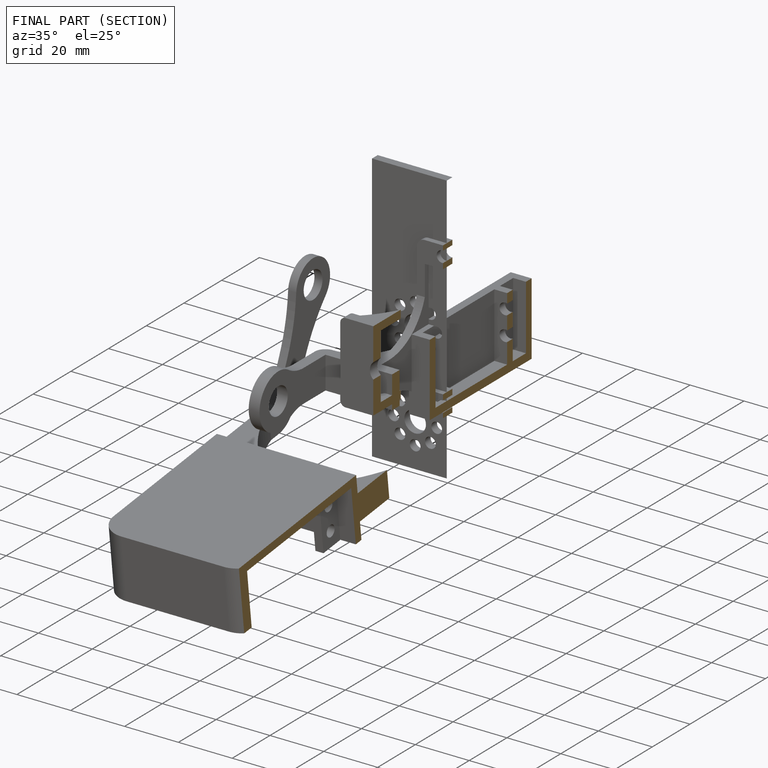
[diagram: finished part — half-section view (interior)]
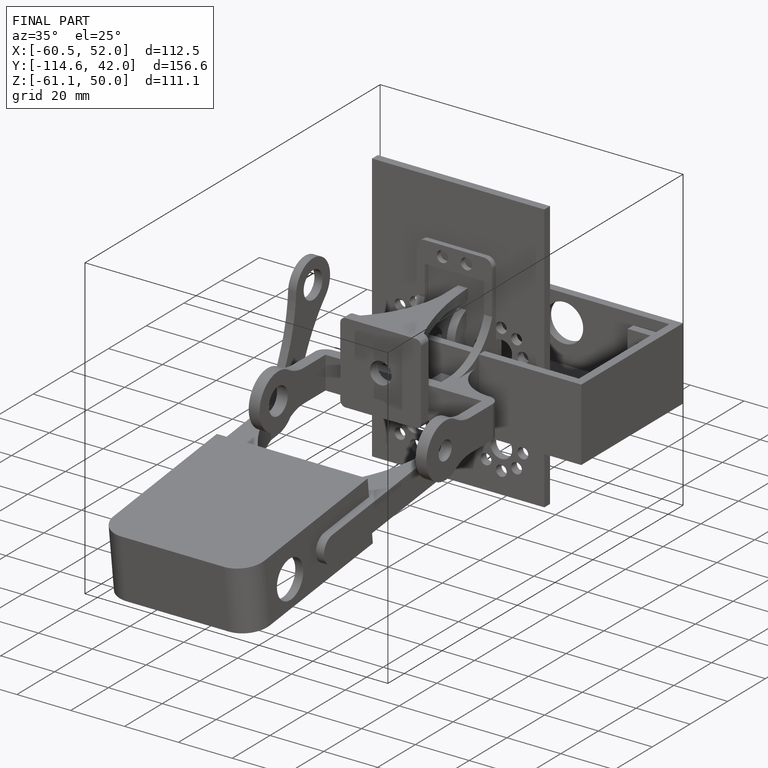
[diagram: finished part — iso view with bounding-box wireframe]
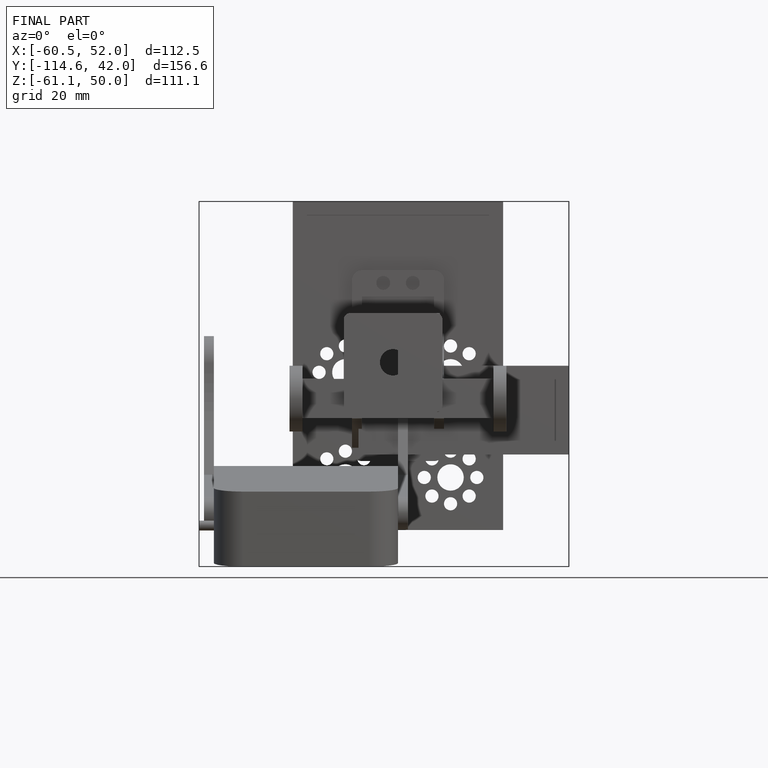
[diagram: finished part — front view with bounding-box wireframe]
